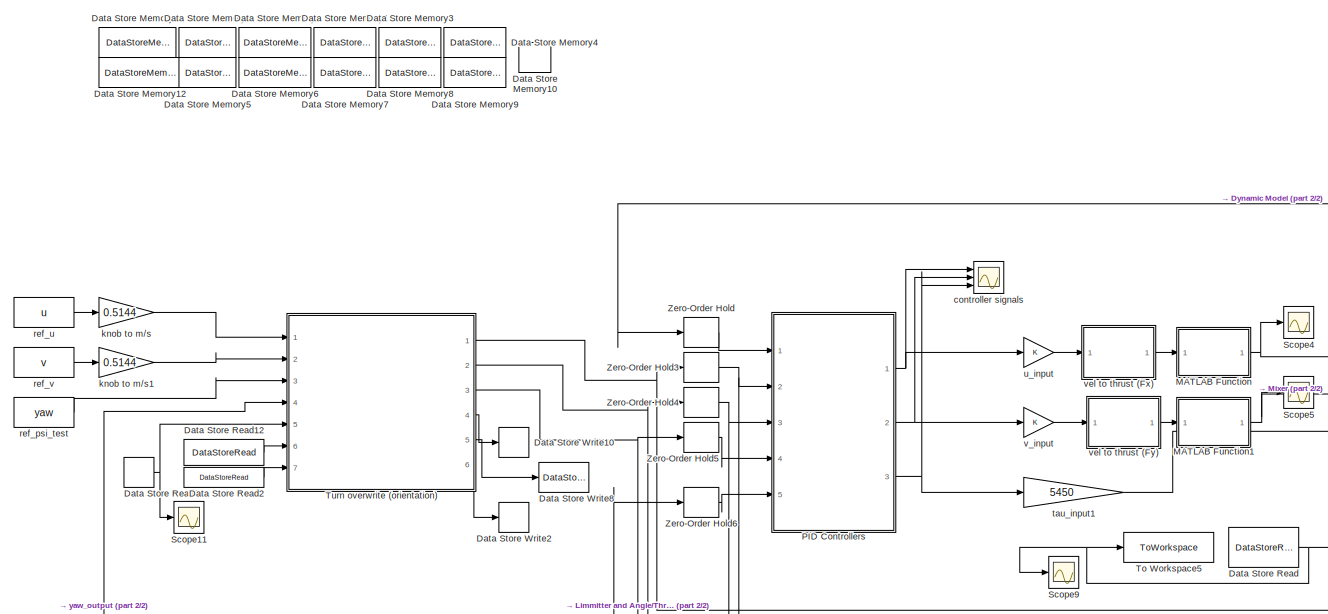
[diagram: root canvas - part 1/2, left side, full height]
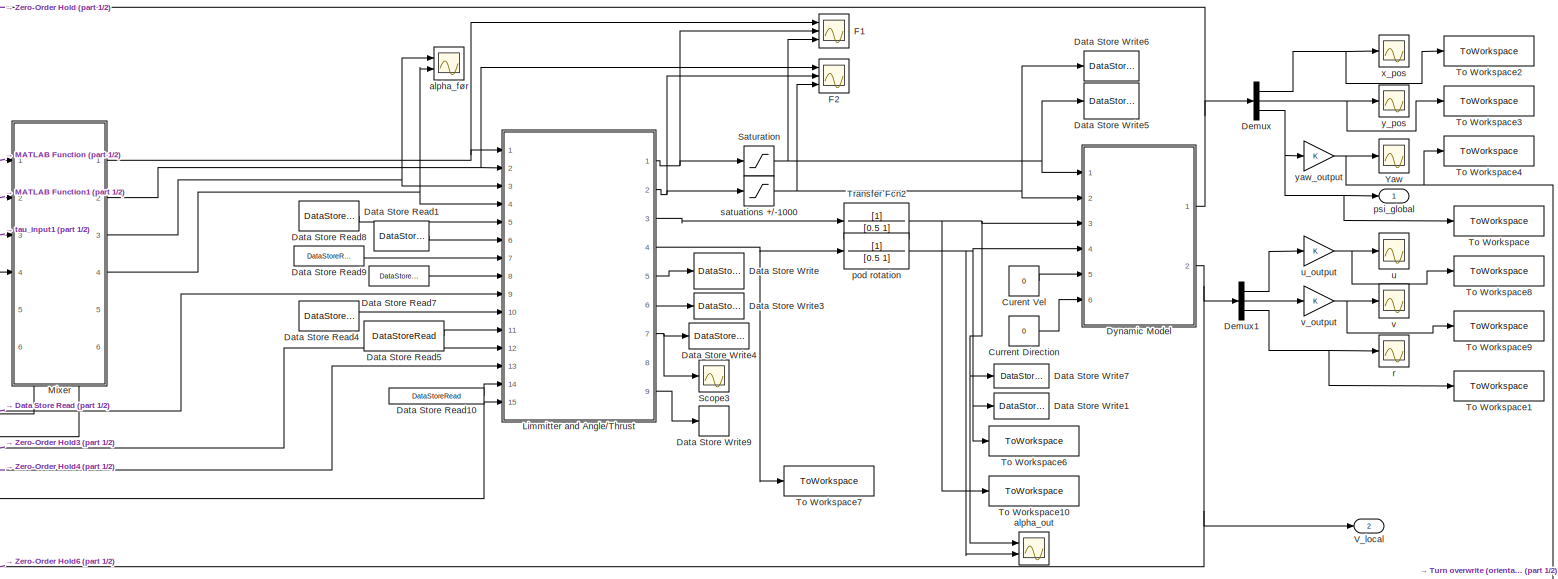
[diagram: root canvas - part 2/2, middle right region]
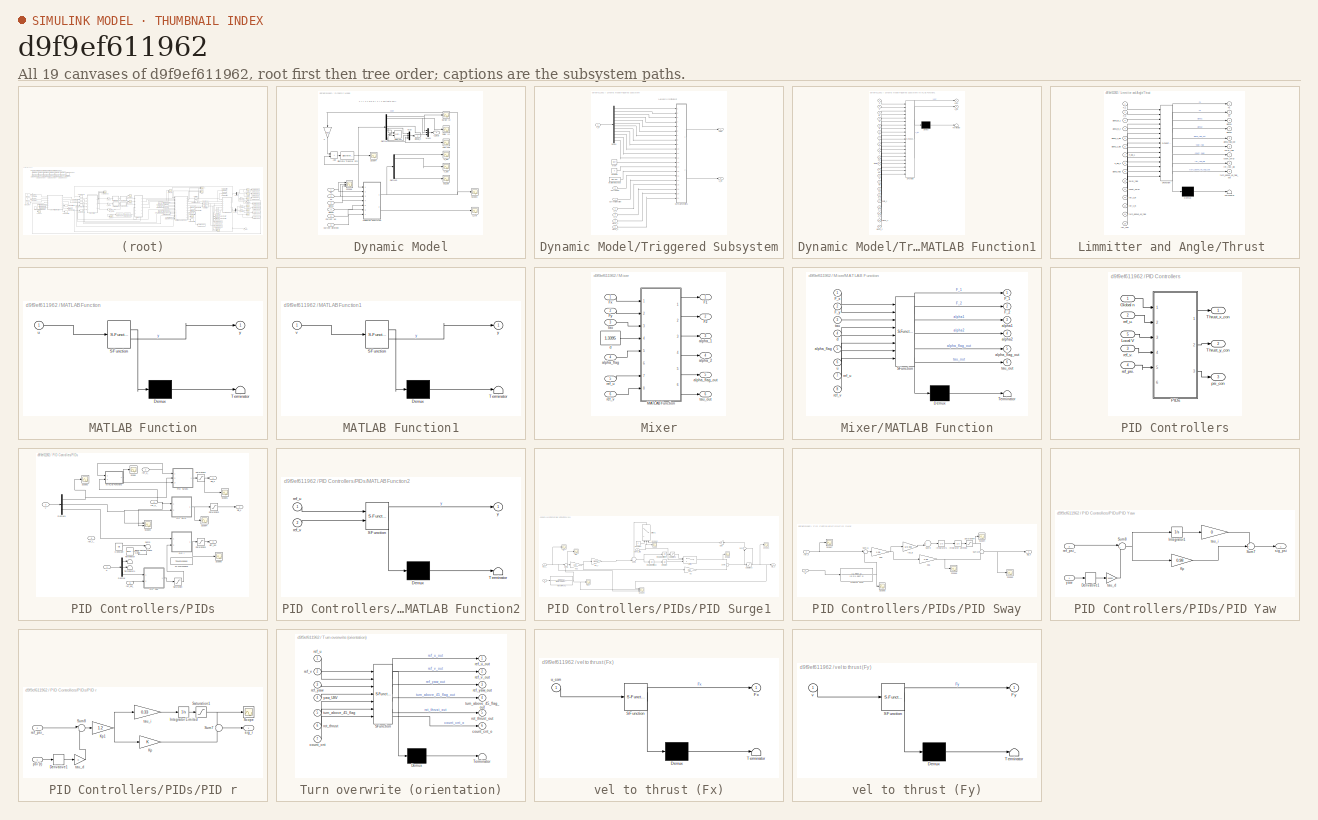
[diagram: thumbnail index - all 19 canvases of the model, root first then tree order]
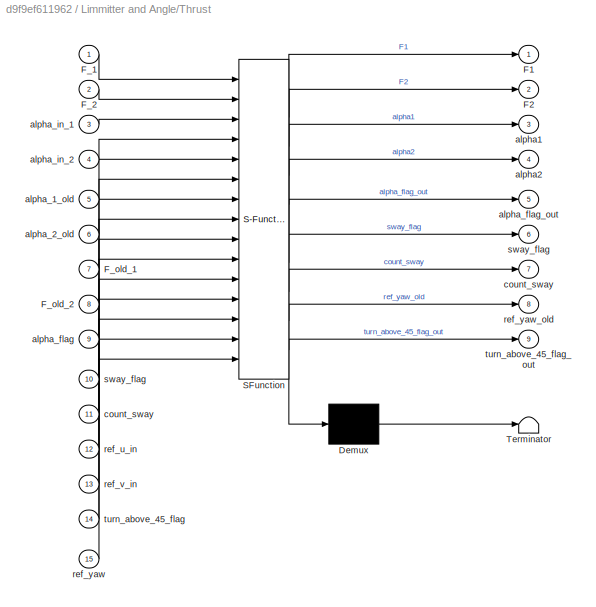
MODEL slx_d9f9ef611962
KIND model
CONFIG AbsTol = auto
CONFIG EnableMultiTasking = off
CONFIG FixedStep = auto
CONFIG MaxStep = auto
CONFIG MinStep = auto
CONFIG RelTol = 1e-3
CONFIG SampleTimeConstraint = Unconstrained
CONFIG SolverName = VariableStepAuto
CONFIG StartTime = 0.0
CONFIG StopTime = 200
BLOCK [Constant] Curent Vel
  Value = 0
BLOCK [Constant] Current Direction
  Value = 0
BLOCK [DataStoreMemory] Data Store Memory
  DataStoreName = alpha_flag
  ReadBeforeWriteMsg = warning
  ShowAdditionalParam = off
  WriteAfterReadMsg = warning
  WriteAfterWriteMsg = warning
BLOCK [DataStoreMemory] Data Store Memory1
  DataStoreName = alpha_2_old
  ReadBeforeWriteMsg = warning
  ShowAdditionalParam = off
  WriteAfterReadMsg = warning
  WriteAfterWriteMsg = warning
BLOCK [DataStoreMemory] Data Store Memory10
  DataStoreName = vs2
  ReadBeforeWriteMsg = warning
  ShowAdditionalParam = off
  WriteAfterReadMsg = warning
  WriteAfterWriteMsg = warning
BLOCK [DataStoreMemory] Data Store Memory11
  DataStoreName = rot_thrust_flag
  ReadBeforeWriteMsg = warning
  ShowAdditionalParam = off
  WriteAfterReadMsg = warning
  WriteAfterWriteMsg = warning
BLOCK [DataStoreMemory] Data Store Memory12
  DataStoreName = count_cnt
  ReadBeforeWriteMsg = warning
  ShowAdditionalParam = off
  WriteAfterReadMsg = warning
  WriteAfterWriteMsg = warning
BLOCK [DataStoreMemory] Data Store Memory2
  DataStoreName = u_con_old
  ReadBeforeWriteMsg = warning
  ShowAdditionalParam = off
  WriteAfterReadMsg = warning
  WriteAfterWriteMsg = warning
BLOCK [DataStoreMemory] Data Store Memory3
  DataStoreName = sway_flag
  ReadBeforeWriteMsg = warning
  ShowAdditionalParam = off
  WriteAfterReadMsg = warning
  WriteAfterWriteMsg = warning
BLOCK [DataStoreMemory] Data Store Memory4
  DataStoreName = count_sway
  ReadBeforeWriteMsg = warning
  ShowAdditionalParam = off
  WriteAfterReadMsg = warning
  WriteAfterWriteMsg = warning
BLOCK [DataStoreMemory] Data Store Memory5
  DataStoreName = F_old_1
  ReadBeforeWriteMsg = warning
  ShowAdditionalParam = off
  WriteAfterReadMsg = warning
  WriteAfterWriteMsg = warning
BLOCK [DataStoreMemory] Data Store Memory6
  DataStoreName = F_old_2
  ReadBeforeWriteMsg = warning
  ShowAdditionalParam = off
  WriteAfterReadMsg = warning
  WriteAfterWriteMsg = warning
BLOCK [DataStoreMemory] Data Store Memory7
  DataStoreName = alpha_1_old
  ReadBeforeWriteMsg = warning
  ShowAdditionalParam = off
  WriteAfterReadMsg = warning
  WriteAfterWriteMsg = warning
BLOCK [DataStoreMemory] Data Store Memory8
  DataStoreName = ref_yaw_old
  ReadBeforeWriteMsg = warning
  ShowAdditionalParam = off
  WriteAfterReadMsg = warning
  WriteAfterWriteMsg = warning
BLOCK [DataStoreMemory] Data Store Memory9
  DataStoreName = turn_above_45_flag
  ReadBeforeWriteMsg = warning
  ShowAdditionalParam = off
  WriteAfterReadMsg = warning
  WriteAfterWriteMsg = warning
BLOCK [DataStoreRead] Data Store Read
  DataStoreName = alpha_flag
  IndexOptions = Index vector (dialog)
  Indices = 1
  OutputSizes = 1
  Ports = [0, 1]
BLOCK [DataStoreRead] Data Store Read1
  DataStoreName = alpha_2_old
  IndexOptions = Index vector (dialog)
  Indices = 1
  OutputSizes = 1
  Ports = [0, 1]
BLOCK [DataStoreRead] Data Store Read10
  DataStoreName = turn_above_45_flag
  IndexOptions = Index vector (dialog)
  Indices = 1
  OutputSizes = 1
  Ports = [0, 1]
BLOCK [DataStoreRead] Data Store Read11
  DataStoreName = vs2
  IndexOptions = Index vector (dialog)
  Indices = 1
  OutputSizes = 1
  Ports = [0, 1]
BLOCK [DataStoreRead] Data Store Read12
  DataStoreName = rot_thrust_flag
  IndexOptions = Index vector (dialog)
  Indices = 1
  OutputSizes = 1
  Ports = [0, 1]
BLOCK [DataStoreRead] Data Store Read2
  DataStoreName = count_cnt
  IndexOptions = Index vector (dialog)
  Indices = 1
  OutputSizes = 1
  Ports = [0, 1]
BLOCK [DataStoreRead] Data Store Read4
  DataStoreName = sway_flag
  IndexOptions = Index vector (dialog)
  Indices = 1
  OutputSizes = 1
  Ports = [0, 1]
BLOCK [DataStoreRead] Data Store Read5
  DataStoreName = count_sway
  IndexOptions = Index vector (dialog)
  Indices = 1
  OutputSizes = 1
  Ports = [0, 1]
BLOCK [DataStoreRead] Data Store Read7
  DataStoreName = F_old_2
  IndexOptions = Index vector (dialog)
  Indices = 1
  OutputSizes = 1
  Ports = [0, 1]
BLOCK [DataStoreRead] Data Store Read8
  DataStoreName = alpha_1_old
  IndexOptions = Index vector (dialog)
  Indices = 1
  OutputSizes = 1
  Ports = [0, 1]
BLOCK [DataStoreRead] Data Store Read9
  DataStoreName = F_old_1
  IndexOptions = Index vector (dialog)
  Indices = 1
  OutputSizes = 1
  Ports = [0, 1]
BLOCK [DataStoreWrite] Data Store Write
  DataStoreName = alpha_flag
  IndexOptions = Index vector (dialog)
  Indices = 1
  OutputSizes = 1
  Ports = [1]
BLOCK [DataStoreWrite] Data Store Write1
  DataStoreName = alpha_2_old
  IndexOptions = Index vector (dialog)
  Indices = 1
  OutputSizes = 1
  Ports = [1]
BLOCK [DataStoreWrite] Data Store Write10
  DataStoreName = vs2
  IndexOptions = Index vector (dialog)
  Indices = 1
  OutputSizes = 1
  Ports = [1]
BLOCK [DataStoreWrite] Data Store Write2
  DataStoreName = count_cnt
  IndexOptions = Index vector (dialog)
  Indices = 1
  OutputSizes = 1
  Ports = [1]
BLOCK [DataStoreWrite] Data Store Write3
  DataStoreName = sway_flag
  IndexOptions = Index vector (dialog)
  Indices = 1
  OutputSizes = 1
  Ports = [1]
BLOCK [DataStoreWrite] Data Store Write4
  DataStoreName = count_sway
  IndexOptions = Index vector (dialog)
  Indices = 1
  OutputSizes = 1
  Ports = [1]
BLOCK [DataStoreWrite] Data Store Write5
  DataStoreName = F_old_1
  IndexOptions = Index vector (dialog)
  Indices = 1
  OutputSizes = 1
  Ports = [1]
BLOCK [DataStoreWrite] Data Store Write6
  DataStoreName = F_old_2
  IndexOptions = Index vector (dialog)
  Indices = 1
  OutputSizes = 1
  Ports = [1]
BLOCK [DataStoreWrite] Data Store Write7
  DataStoreName = alpha_1_old
  IndexOptions = Index vector (dialog)
  Indices = 1
  OutputSizes = 1
  Ports = [1]
BLOCK [DataStoreWrite] Data Store Write8
  DataStoreName = rot_thrust_flag
  IndexOptions = Index vector (dialog)
  Indices = 1
  OutputSizes = 1
  Ports = [1]
BLOCK [DataStoreWrite] Data Store Write9
  DataStoreName = turn_above_45_flag
  IndexOptions = Index vector (dialog)
  Indices = 1
  OutputSizes = 1
  Ports = [1]
BLOCK [Demux] Demux
  Outputs = 3
  Ports = [1, 3]
BLOCK [Demux] Demux1
  Outputs = 3
  Ports = [1, 3]
BLOCK [SubSystem] Dynamic Model
  Ports = [6, 2]
  RequestExecContextInheritance = off
BLOCK [Sum] Dynamic Model/Add
  IconShape = rectangular
  Ports = [2, 1]
BLOCK [Inport] Dynamic Model/Current Vel
  Port = 5
BLOCK [Inport] Dynamic Model/Current direction
  Port = 6
BLOCK [Demux] Dynamic Model/Demux
  Outputs = 12
  Ports = [1, 12]
BLOCK [Demux] Dynamic Model/Demux5
  Outputs = 12
  Ports = [1, 12]
BLOCK [DiscreteTransferFcn] Dynamic Model/Discrete Transfer Fcn
  Denominator = [ 1 0]
  InputPortMap = u0
  Ports = [1, 1]
  SampleTime = 0.02
BLOCK [Inport] Dynamic Model/F1
BLOCK [Inport] Dynamic Model/F2
  Port = 2
BLOCK [Mux] Dynamic Model/Mux
  DisplayOption = bar
  Inputs = 3
  Ports = [3, 1]
BLOCK [Mux] Dynamic Model/Mux1
  DisplayOption = bar
  Inputs = 3
  Ports = [3, 1]
BLOCK [Reference] Dynamic Model/NED-XY2  REF=simulink/Sinks/XY Graph
  Ports = [2]
  SourceBlock = simulink/Sinks/XY Graph
  SourceProductBaseCode = SL
  SourceType = XY scope.
BLOCK [Scope] Dynamic Model/Scope3
  Floating = off
  NumInputPorts = 1
  Ports = [1]
  ScopeSpecificationString = Simulink.scopes.TimeScopeBlockCfg('CurrentConfiguration', extmgr.ConfigurationSet(extmgr.Configuration('Core','General UI',true),extmgr.Configuration('Core','Source UI',true),extmgr.Configuration('Sources','WiredSimulink',true,'DataLoggingVariableName','ScopeData9'),extmgr.Configuration('Visuals','Time Domain',true,'SerializedDisplays',{struct('MinYLimReal','-3.2642','MaxYLimReal','24.99719','YLab...<+1909ch>
BLOCK [Scope] Dynamic Model/Scope4
  Floating = off
  NumInputPorts = 1
  Ports = [1]
  ScopeSpecificationString = Simulink.scopes.TimeScopeBlockCfg('CurrentConfiguration', extmgr.ConfigurationSet(extmgr.Configuration('Core','General UI',true),extmgr.Configuration('Core','Source UI',true),extmgr.Configuration('Sources','WiredSimulink',true,'DataLoggingVariableName','ScopeData10'),extmgr.Configuration('Visuals','Time Domain',true,'SerializedDisplays',{struct('MinYLimReal','-99.44785','MaxYLimReal','894.99082','...<+2087ch>
BLOCK [Scope] Dynamic Model/Scope6
  Floating = off
  NumInputPorts = 3
  Ports = [3]
  ScopeSpecificationString = Simulink.scopes.TimeScopeBlockCfg('CurrentConfiguration', extmgr.ConfigurationSet(extmgr.Configuration('Core','General UI',true),extmgr.Configuration('Core','Source UI',true),extmgr.Configuration('Sources','WiredSimulink',true,'DataLoggingVariableName','ScopeData12'),extmgr.Configuration('Visuals','Time Domain',true,'SerializedDisplays',{struct('MinYLimReal','-67.98053','MaxYLimReal','611.8248','Y...<+1773ch>
BLOCK [Scope] Dynamic Model/Surge (u)
  Floating = off
  NumInputPorts = 1
  Ports = [1]
  ScopeSpecificationString = Simulink.scopes.TimeScopeBlockCfg('CurrentConfiguration', extmgr.ConfigurationSet(extmgr.Configuration('Core','General UI',true),extmgr.Configuration('Core','Source UI',true),extmgr.Configuration('Sources','WiredSimulink',true,'DataLoggingVariableName','ScopeData8'),extmgr.Configuration('Visuals','Time Domain',true,'SerializedDisplays',{struct('MinYLimReal','-0.25367','MaxYLimReal','2.28305','YLab...<+1721ch>
BLOCK [Scope] Dynamic Model/Sway (v)
  Floating = off
  NumInputPorts = 1
  Ports = [1]
  ScopeSpecificationString = Simulink.scopes.TimeScopeBlockCfg('CurrentConfiguration', extmgr.ConfigurationSet(extmgr.Configuration('Core','General UI',true),extmgr.Configuration('Core','Source UI',true),extmgr.Configuration('Sources','WiredSimulink',true,'DataLoggingVariableName','ScopeData13'),extmgr.Configuration('Visuals','Time Domain',true,'SerializedDisplays',{struct('MinYLimReal','-0.08805','MaxYLimReal','0.79243','YLa...<+1696ch>
BLOCK [SubSystem] Dynamic Model/Triggered Subsystem
  Ports = [7, 2]
  RequestExecContextInheritance = off
  TreatAsAtomicUnit = on
BLOCK [Inport] Dynamic Model/Triggered Subsystem/Current Direction
  Port = 7
BLOCK [Inport] Dynamic Model/Triggered Subsystem/Current Vel
  Port = 6
BLOCK [Demux] Dynamic Model/Triggered Subsystem/Demux
  Outputs = 12
  Ports = [1, 12]
BLOCK [Inport] Dynamic Model/Triggered Subsystem/F_1
  Port = 2
BLOCK [Inport] Dynamic Model/Triggered Subsystem/F_2
  Port = 3
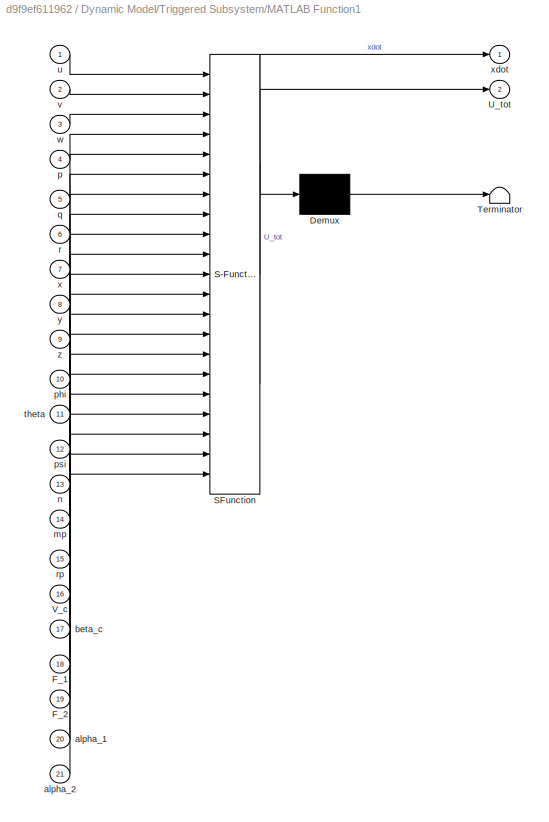
BLOCK [SubSystem] Dynamic Model/Triggered Subsystem/MATLAB Function1
  ErrorFcn = Stateflow.Translate.translate
  PermitHierarchicalResolution = ExplicitOnly
  Ports = [21, 2]
  RequestExecContextInheritance = off
  SFBlockType = MATLAB Function
  TreatAsAtomicUnit = on
BLOCK [Demux] Dynamic Model/Triggered Subsystem/MATLAB Function1/ Demux 
  Outputs = 1
  Ports = [1, 1]
BLOCK [S-Function] Dynamic Model/Triggered Subsystem/MATLAB Function1/ SFunction 
  EnableBusSupport = on
  FunctionName = sf_sfun
  PortCounts = [21 3]
  Ports = [21, 3]
  SFcnIsStateOwnerBlock = off
  SFunctionDeploymentMode = off
  Tag = Stateflow S-Function 13
BLOCK [Terminator] Dynamic Model/Triggered Subsystem/MATLAB Function1/ Terminator 
BLOCK [Inport] Dynamic Model/Triggered Subsystem/MATLAB Function1/F_1
  Port = 18
BLOCK [Inport] Dynamic Model/Triggered Subsystem/MATLAB Function1/F_2
  Port = 19
BLOCK [Outport] Dynamic Model/Triggered Subsystem/MATLAB Function1/U_tot
  Port = 2
BLOCK [Inport] Dynamic Model/Triggered Subsystem/MATLAB Function1/V_c
  Port = 16
BLOCK [Inport] Dynamic Model/Triggered Subsystem/MATLAB Function1/alpha_1
  Port = 20
BLOCK [Inport] Dynamic Model/Triggered Subsystem/MATLAB Function1/alpha_2
  Port = 21
BLOCK [Inport] Dynamic Model/Triggered Subsystem/MATLAB Function1/beta_c
  Port = 17
BLOCK [Inport] Dynamic Model/Triggered Subsystem/MATLAB Function1/mp
  Port = 14
BLOCK [Inport] Dynamic Model/Triggered Subsystem/MATLAB Function1/n
  Port = 13
BLOCK [Inport] Dynamic Model/Triggered Subsystem/MATLAB Function1/p
  Port = 4
BLOCK [Inport] Dynamic Model/Triggered Subsystem/MATLAB Function1/phi
  Port = 10
BLOCK [Inport] Dynamic Model/Triggered Subsystem/MATLAB Function1/psi
  Port = 12
BLOCK [Inport] Dynamic Model/Triggered Subsystem/MATLAB Function1/q
  Port = 5
BLOCK [Inport] Dynamic Model/Triggered Subsystem/MATLAB Function1/r
  Port = 6
BLOCK [Inport] Dynamic Model/Triggered Subsystem/MATLAB Function1/rp
  Port = 15
BLOCK [Inport] Dynamic Model/Triggered Subsystem/MATLAB Function1/theta
  Port = 11
BLOCK [Inport] Dynamic Model/Triggered Subsystem/MATLAB Function1/u
BLOCK [Inport] Dynamic Model/Triggered Subsystem/MATLAB Function1/v
  Port = 2
BLOCK [Inport] Dynamic Model/Triggered Subsystem/MATLAB Function1/w
  Port = 3
BLOCK [Inport] Dynamic Model/Triggered Subsystem/MATLAB Function1/x
  Port = 7
BLOCK [Outport] Dynamic Model/Triggered Subsystem/MATLAB Function1/xdot
BLOCK [Inport] Dynamic Model/Triggered Subsystem/MATLAB Function1/y
  Port = 8
BLOCK [Inport] Dynamic Model/Triggered Subsystem/MATLAB Function1/z
  Port = 9
BLOCK [Outport] Dynamic Model/Triggered Subsystem/U_tot
  Port = 2
BLOCK [Inport] Dynamic Model/Triggered Subsystem/alpha_1
  Port = 4
BLOCK [Inport] Dynamic Model/Triggered Subsystem/alpha_2
  Port = 5
BLOCK [Constant] Dynamic Model/Triggered Subsystem/location of payload
  Value = [0 0 -0.1]'
BLOCK [Constant] Dynamic Model/Triggered Subsystem/n rpm
  Value = [0 0]'
BLOCK [Constant] Dynamic Model/Triggered Subsystem/payload
  Value = 0
BLOCK [Inport] Dynamic Model/Triggered Subsystem/x_in
BLOCK [Outport] Dynamic Model/Triggered Subsystem/xdot
BLOCK [Scope] Dynamic Model/U_tot
  Floating = off
  NumInputPorts = 1
  Ports = [1]
  ScopeSpecificationString = Simulink.scopes.TimeScopeBlockCfg('CurrentConfiguration', extmgr.ConfigurationSet(extmgr.Configuration('Core','General UI',true),extmgr.Configuration('Core','Source UI',true),extmgr.Configuration('Sources','WiredSimulink',true,'DataLoggingVariableName','ScopeData11'),extmgr.Configuration('Visuals','Time Domain',true,'SerializedDisplays',{struct('MinYLimReal','-0.55994','MaxYLimReal','5.03948','YLa...<+1410ch>
BLOCK [Outport] Dynamic Model/V_local
  Port = 2
BLOCK [Scope] Dynamic Model/Yaw (psi)
  Floating = off
  NumInputPorts = 1
  Ports = [1]
  ScopeSpecificationString = Simulink.scopes.TimeScopeBlockCfg('CurrentConfiguration', extmgr.ConfigurationSet(extmgr.Configuration('Core','General UI',true),extmgr.Configuration('Core','Source UI',true),extmgr.Configuration('Sources','WiredSimulink',true,'DataLoggingVariableName','ScopeData14'),extmgr.Configuration('Visuals','Time Domain',true,'SerializedDisplays',{struct('MinYLimReal','-1.00000','MaxYLimReal','1.00000','YLa...<+1422ch>
BLOCK [Inport] Dynamic Model/alpha1
  Port = 3
BLOCK [Inport] Dynamic Model/alpha2
  Port = 4
BLOCK [Outport] Dynamic Model/global_n
BLOCK [Gain] Dynamic Model/h
  Gain = 0.02
  NameLocation = left
BLOCK [Scope] Dynamic Model/psi_dot
  Floating = off
  NumInputPorts = 1
  Ports = [1]
  ScopeSpecificationString = Simulink.scopes.TimeScopeBlockCfg('CurrentConfiguration', extmgr.ConfigurationSet(extmgr.Configuration('Core','General UI',true),extmgr.Configuration('Core','Source UI',true),extmgr.Configuration('Sources','WiredSimulink',true,'DataLoggingVariableName','ScopeData7'),extmgr.Configuration('Visuals','Time Domain',true,'SerializedDisplays',{struct('MinYLimReal','-0.00000006','MaxYLimReal','0.00000019'...<+1438ch>
BLOCK [Scope] Dynamic Model/u_dot
  Floating = off
  NumInputPorts = 1
  Ports = [1]
  ScopeSpecificationString = Simulink.scopes.TimeScopeBlockCfg('CurrentConfiguration', extmgr.ConfigurationSet(extmgr.Configuration('Core','General UI',true),extmgr.Configuration('Core','Source UI',true),extmgr.Configuration('Sources','WiredSimulink',true,'DataLoggingVariableName','ScopeData5'),extmgr.Configuration('Visuals','Time Domain',true,'SerializedDisplays',{struct('MinYLimReal','-0.14262','MaxYLimReal','1.38682','YLab...<+1442ch>
BLOCK [Scope] Dynamic Model/v_dot
  Floating = off
  NumInputPorts = 1
  Ports = [1]
  ScopeSpecificationString = Simulink.scopes.TimeScopeBlockCfg('CurrentConfiguration', extmgr.ConfigurationSet(extmgr.Configuration('Core','General UI',true),extmgr.Configuration('Core','Source UI',true),extmgr.Configuration('Sources','WiredSimulink',true,'DataLoggingVariableName','ScopeData6'),extmgr.Configuration('Visuals','Time Domain',true,'SerializedDisplays',{struct('MinYLimReal','0.23964','MaxYLimReal','0.2606','YLabel...<+1436ch>
BLOCK [Scope] F1
  Floating = off
  NumInputPorts = 3
  Ports = [3]
  ScopeSpecificationString = Simulink.scopes.TimeScopeBlockCfg('CurrentConfiguration', extmgr.ConfigurationSet(extmgr.Configuration('Core','General UI',true),extmgr.Configuration('Core','Source UI',true),extmgr.Configuration('Sources','WiredSimulink',true,'DataLoggingVariableName','ScopeData3'),extmgr.Configuration('Visuals','Time Domain',true,'SerializedDisplays',{struct('MinYLimReal','-211.62703','MaxYLimReal','184.92836','...<+1508ch>
BLOCK [Scope] F2
  Floating = off
  NumInputPorts = 3
  Ports = [3]
  ScopeSpecificationString = Simulink.scopes.TimeScopeBlockCfg('CurrentConfiguration', extmgr.ConfigurationSet(extmgr.Configuration('Core','General UI',true),extmgr.Configuration('Core','Source UI',true),extmgr.Configuration('Sources','WiredSimulink',true,'DataLoggingVariableName','ScopeData4'),extmgr.Configuration('Visuals','Time Domain',true,'SerializedDisplays',{struct('MinYLimReal','-614.27607','MaxYLimReal','1278.61173',...<+1519ch>
BLOCK [SubSystem] Limmitter and Angle//Thrust 
  ErrorFcn = Stateflow.Translate.translate
  PermitHierarchicalResolution = ExplicitOnly
  Ports = [15, 9]
  RequestExecContextInheritance = off
  SFBlockType = MATLAB Function
  TreatAsAtomicUnit = on
BLOCK [Demux] Limmitter and Angle//Thrust / Demux 
  Outputs = 1
  Ports = [1, 1]
BLOCK [S-Function] Limmitter and Angle//Thrust / SFunction 
  EnableBusSupport = on
  FunctionName = sf_sfun
  PortCounts = [15 10]
  Ports = [15, 10]
  SFcnIsStateOwnerBlock = off
  SFunctionDeploymentMode = off
  Tag = Stateflow S-Function 1
BLOCK [Terminator] Limmitter and Angle//Thrust / Terminator 
BLOCK [Outport] Limmitter and Angle//Thrust /F1
BLOCK [Outport] Limmitter and Angle//Thrust /F2
  Port = 2
BLOCK [Inport] Limmitter and Angle//Thrust /F_1
BLOCK [Inport] Limmitter and Angle//Thrust /F_2
  Port = 2
BLOCK [Inport] Limmitter and Angle//Thrust /F_old_1
  Port = 7
BLOCK [Inport] Limmitter and Angle//Thrust /F_old_2
  Port = 8
BLOCK [Outport] Limmitter and Angle//Thrust /alpha1
  Port = 3
BLOCK [Outport] Limmitter and Angle//Thrust /alpha2
  Port = 4
BLOCK [Inport] Limmitter and Angle//Thrust /alpha_1_old
  Port = 5
BLOCK [Inport] Limmitter and Angle//Thrust /alpha_2_old
  Port = 6
BLOCK [Inport] Limmitter and Angle//Thrust /alpha_flag
  Port = 9
BLOCK [Outport] Limmitter and Angle//Thrust /alpha_flag_out
  Port = 5
BLOCK [Inport] Limmitter and Angle//Thrust /alpha_in_1
  Port = 3
BLOCK [Inport] Limmitter and Angle//Thrust /alpha_in_2
  Port = 4
BLOCK [Outport] Limmitter and Angle//Thrust /count_sway
  Port = 7
BLOCK [Inport] Limmitter and Angle//Thrust /count_sway 
  Port = 11
BLOCK [Inport] Limmitter and Angle//Thrust /ref_u_in
  Port = 12
BLOCK [Inport] Limmitter and Angle//Thrust /ref_v_in
  Port = 13
BLOCK [Inport] Limmitter and Angle//Thrust /ref_yaw
  Port = 15
BLOCK [Outport] Limmitter and Angle//Thrust /ref_yaw_old
  Port = 8
BLOCK [Outport] Limmitter and Angle//Thrust /sway_flag
  Port = 6
BLOCK [Inport] Limmitter and Angle//Thrust /sway_flag 
  Port = 10
BLOCK [Inport] Limmitter and Angle//Thrust /turn_above_45_flag
  Port = 14
BLOCK [Outport] Limmitter and Angle//Thrust /turn_above_45_flag_out
  Port = 9
BLOCK [SubSystem] MATLAB Function
  ErrorFcn = Stateflow.Translate.translate
  PermitHierarchicalResolution = ExplicitOnly
  Ports = [1, 1]
  RequestExecContextInheritance = off
  SFBlockType = MATLAB Function
  TreatAsAtomicUnit = on
BLOCK [Demux] MATLAB Function/ Demux 
  Outputs = 1
  Ports = [1, 1]
BLOCK [S-Function] MATLAB Function/ SFunction 
  EnableBusSupport = on
  FunctionName = sf_sfun
  PortCounts = [1 2]
  Ports = [1, 2]
  SFcnIsStateOwnerBlock = off
  SFunctionDeploymentMode = off
  Tag = Stateflow S-Function 6
BLOCK [Terminator] MATLAB Function/ Terminator 
BLOCK [Inport] MATLAB Function/u
BLOCK [Outport] MATLAB Function/y
BLOCK [SubSystem] MATLAB Function1
  ErrorFcn = Stateflow.Translate.translate
  PermitHierarchicalResolution = ExplicitOnly
  Ports = [1, 1]
  RequestExecContextInheritance = off
  SFBlockType = MATLAB Function
  TreatAsAtomicUnit = on
BLOCK [Demux] MATLAB Function1/ Demux 
  Outputs = 1
  Ports = [1, 1]
BLOCK [S-Function] MATLAB Function1/ SFunction 
  EnableBusSupport = on
  FunctionName = sf_sfun
  PortCounts = [1 2]
  Ports = [1, 2]
  SFcnIsStateOwnerBlock = off
  SFunctionDeploymentMode = off
  Tag = Stateflow S-Function 14
BLOCK [Terminator] MATLAB Function1/ Terminator 
BLOCK [Inport] MATLAB Function1/v
BLOCK [Outport] MATLAB Function1/y
BLOCK [SubSystem] Mixer
  PortSchema = {"entries":[{"content":{"sides":[{"content":{"connectorIds":["In1","In2","In3","In4"]},"type":"ConnectorPlacement.EquallySpacedRectSide","uuid":"7188d02b-cfcc-47db-af94-18894173419c"},{"content":{"connectorIds":["Out1","Out2","Out3","Out4","Out5","Out6"],"side":"RIGHT"},"type":"ConnectorPlacement.EquallySpacedRectSide","uuid":"02945fdb-bbe4-4a20-85bf-b896b72802e6"},{"content":{"connectorIds":[],"s...<+448ch>
  Ports = [6, 6]
  RequestExecContextInheritance = off
BLOCK [Outport] Mixer/F1
BLOCK [Outport] Mixer/F2
  Port = 2
BLOCK [Inport] Mixer/Fx
BLOCK [Inport] Mixer/Fy
  Port = 2
BLOCK [SubSystem] Mixer/MATLAB Function
  ErrorFcn = Stateflow.Translate.translate
  PermitHierarchicalResolution = ExplicitOnly
  Ports = [8, 6]
  RequestExecContextInheritance = off
  SFBlockType = MATLAB Function
  TreatAsAtomicUnit = on
BLOCK [Demux] Mixer/MATLAB Function/ Demux 
  Outputs = 1
  Ports = [1, 1]
BLOCK [S-Function] Mixer/MATLAB Function/ SFunction 
  EnableBusSupport = on
  FunctionName = sf_sfun
  PortCounts = [8 7]
  Ports = [8, 7]
  SFcnIsStateOwnerBlock = off
  SFunctionDeploymentMode = off
  Tag = Stateflow S-Function 19
BLOCK [Terminator] Mixer/MATLAB Function/ Terminator 
BLOCK [Outport] Mixer/MATLAB Function/F_1
BLOCK [Outport] Mixer/MATLAB Function/F_2
  Port = 2
BLOCK [Inport] Mixer/MATLAB Function/F_x
BLOCK [Inport] Mixer/MATLAB Function/F_y
  Port = 2
BLOCK [Outport] Mixer/MATLAB Function/alpha1
  Port = 3
BLOCK [Outport] Mixer/MATLAB Function/alpha2
  Port = 4
BLOCK [Inport] Mixer/MATLAB Function/alpha_flag
  Port = 5
BLOCK [Outport] Mixer/MATLAB Function/alpha_flag_out
  Port = 5
BLOCK [Inport] Mixer/MATLAB Function/d
  Port = 4
BLOCK [Inport] Mixer/MATLAB Function/ref_u
  Port = 7
BLOCK [Inport] Mixer/MATLAB Function/ref_v
  Port = 8
BLOCK [Inport] Mixer/MATLAB Function/tau
  Port = 3
BLOCK [Outport] Mixer/MATLAB Function/tau_out
  Port = 6
BLOCK [Inport] Mixer/MATLAB Function/u
  Port = 6
BLOCK [Outport] Mixer/alpha_1
  Port = 3
BLOCK [Outport] Mixer/alpha_2
  Port = 4
BLOCK [Inport] Mixer/alpha_flag
  Port = 4
BLOCK [Outport] Mixer/alpha_flag_out
  Port = 5
BLOCK [Constant] Mixer/d
  Value = 1.3395
BLOCK [Inport] Mixer/ref_u
  Port = 5
BLOCK [Inport] Mixer/ref_v
  Port = 6
BLOCK [Inport] Mixer/tau
  Port = 3
BLOCK [Outport] Mixer/tau_out
  Port = 6
BLOCK [SubSystem] PID Controllers
  Ports = [5, 3]
  RequestExecContextInheritance = off
BLOCK [Inport] PID Controllers/Global n
BLOCK [Inport] PID Controllers/Local V
  Port = 5
BLOCK [SubSystem] PID Controllers/PIDs
  Ports = [6, 3]
  RequestExecContextInheritance = off
BLOCK [Reference] PID Controllers/PIDs/Band-Limited White Noise  REF=simulink/Sources/Band-Limited
White Noise
  Ports = [0, 1]
  SourceBlock = simulink/Sources/Band-Limited\nWhite Noise
  SourceProductBaseCode = SL
  SourceType = Band-Limited White Noise.
BLOCK [Constant] PID Controllers/PIDs/Constant
  Value = pi/2
BLOCK [Demux] PID Controllers/PIDs/Demux
  Outputs = 3
  Ports = [1, 3]
BLOCK [Demux] PID Controllers/PIDs/Demux1
  Outputs = 3
  Ports = [1, 3]
BLOCK [SubSystem] PID Controllers/PIDs/MATLAB Function2
  ErrorFcn = Stateflow.Translate.translate
  PermitHierarchicalResolution = ExplicitOnly
  Ports = [2, 1]
  RequestExecContextInheritance = off
  SFBlockType = MATLAB Function
  TreatAsAtomicUnit = on
BLOCK [Demux] PID Controllers/PIDs/MATLAB Function2/ Demux 
  Outputs = 1
  Ports = [1, 1]
BLOCK [S-Function] PID Controllers/PIDs/MATLAB Function2/ SFunction 
  EnableBusSupport = on
  FunctionName = sf_sfun
  PortCounts = [2 2]
  Ports = [2, 2]
  SFcnIsStateOwnerBlock = off
  SFunctionDeploymentMode = off
  Tag = Stateflow S-Function 4
BLOCK [Terminator] PID Controllers/PIDs/MATLAB Function2/ Terminator 
BLOCK [Inport] PID Controllers/PIDs/MATLAB Function2/ref_u
BLOCK [Inport] PID Controllers/PIDs/MATLAB Function2/ref_v
  Port = 2
BLOCK [Outport] PID Controllers/PIDs/MATLAB Function2/y
BLOCK [SubSystem] PID Controllers/PIDs/PID Surge1
  Ports = [3, 1]
  RequestExecContextInheritance = off
BLOCK [Constant] PID Controllers/PIDs/PID Surge1/Constant
  Value = 0
BLOCK [Gain] PID Controllers/PIDs/PID Surge1/Gain
  Gain = 0.9
  NameLocation = top
BLOCK [Integrator] PID Controllers/PIDs/PID Surge1/Integrator
  Ports = [1, 1]
BLOCK [Integrator] PID Controllers/PIDs/PID Surge1/Integrator Limited2
  Commented = through
  LimitOutput = on
  LowerSaturationLimit = -0.5144
  Ports = [1, 1]
  UpperSaturationLimit = 0.5144
BLOCK [Integrator] PID Controllers/PIDs/PID Surge1/Integrator Limited3
  LimitOutput = on
  LowerSaturationLimit = -0.2
  Ports = [1, 1]
  UpperSaturationLimit = 0.2
BLOCK [Gain] PID Controllers/PIDs/PID Surge1/Kp
  Commented = through
  Gain = 2.56
BLOCK [Gain] PID Controllers/PIDs/PID Surge1/Kp2
  Gain = 1.43
BLOCK [Saturate] PID Controllers/PIDs/PID Surge1/Saturation3
  LowerLimit = -8*0.54133
  UpperLimit = 8*0.54133
BLOCK [Saturate] PID Controllers/PIDs/PID Surge1/Saturation5
  LowerLimit = 0
  UpperLimit = 0
BLOCK [Scope] PID Controllers/PIDs/PID Surge1/Scope
  Floating = off
  NumInputPorts = 1
  Ports = [1]
  ScopeSpecificationString = Simulink.scopes.TimeScopeBlockCfg('CurrentConfiguration', extmgr.ConfigurationSet(extmgr.Configuration('Core','General UI',true),extmgr.Configuration('Core','Source UI',true),extmgr.Configuration('Sources','WiredSimulink',true,'DataLoggingVariableName','ScopeData1'),extmgr.Configuration('Visuals','Time Domain',true,'SerializedDisplays',{struct('MinYLimReal','-1.00000','MaxYLimReal','1.00000','YLab...<+1396ch>
BLOCK [Scope] PID Controllers/PIDs/PID Surge1/Scope2
  Floating = off
  NumInputPorts = 1
  Ports = [1]
  ScopeSpecificationString = Simulink.scopes.TimeScopeBlockCfg('CurrentConfiguration', extmgr.ConfigurationSet(extmgr.Configuration('Core','General UI',true),extmgr.Configuration('Core','Source UI',true),extmgr.Configuration('Sources','WiredSimulink',true,'DataLoggingVariableName','ScopeData6'),extmgr.Configuration('Visuals','Time Domain',true,'SerializedDisplays',{struct('MinYLimReal','0.9','MaxYLimReal','1.1','YLabelReal','...<+1366ch>
BLOCK [Scope] PID Controllers/PIDs/PID Surge1/Scope3
  Floating = off
  NumInputPorts = 1
  Ports = [1]
  ScopeSpecificationString = Simulink.scopes.TimeScopeBlockCfg('CurrentConfiguration', extmgr.ConfigurationSet(extmgr.Configuration('Core','General UI',true),extmgr.Configuration('Core','Source UI',true),extmgr.Configuration('Sources','WiredSimulink',true,'DataLoggingVariableName','ScopeData2'),extmgr.Configuration('Visuals','Time Domain',true,'SerializedDisplays',{struct('MinYLimReal','-5.4133','MaxYLimReal','5.4133','YLabel...<+1415ch>
BLOCK [Scope] PID Controllers/PIDs/PID Surge1/Scope4
  Floating = off
  NumInputPorts = 3
  Ports = [3]
  ScopeSpecificationString = Simulink.scopes.TimeScopeBlockCfg('CurrentConfiguration', extmgr.ConfigurationSet(extmgr.Configuration('Core','General UI',true),extmgr.Configuration('Core','Source UI',true),extmgr.Configuration('Sources','WiredSimulink',true,'DataLoggingVariableName','ScopeData6'),extmgr.Configuration('Visuals','Time Domain',true,'SerializedDisplays',{struct('MinYLimReal','-5.40739','MaxYLimReal','5.36013','YLab...<+1805ch>
BLOCK [Sum] PID Controllers/PIDs/PID Surge1/Sum
  Inputs = |-+
  NameLocation = right
  Ports = [2, 1]
BLOCK [Sum] PID Controllers/PIDs/PID Surge1/Sum3
  Inputs = +++|
  Ports = [3, 1]
BLOCK [Sum] PID Controllers/PIDs/PID Surge1/Sum5
  Ports = [2, 1]
BLOCK [Sum] PID Controllers/PIDs/PID Surge1/Sum6
  Inputs = |+-
  Ports = [2, 1]
BLOCK [Switch] PID Controllers/PIDs/PID Surge1/Switch
  Criteria = u2 > Threshold
  InputSameDT = off
  SaturateOnIntegerOverflow = off
BLOCK [Switch] PID Controllers/PIDs/PID Surge1/Switch1
  Criteria = u2 > Threshold
  InputSameDT = off
  NameLocation = right
  SaturateOnIntegerOverflow = off
BLOCK [TransferFcn] PID Controllers/PIDs/PID Surge1/Transfer Fcn2
  Denominator = [0.05*1.4907 1]
  Numerator = [1.4907 1]
BLOCK [Inport] PID Controllers/PIDs/PID Surge1/alpha_flag
  Port = 3
BLOCK [Scope] PID Controllers/PIDs/PID Surge1/error
  Floating = off
  NumInputPorts = 1
  Ports = [1]
  ScopeSpecificationString = Simulink.scopes.TimeScopeBlockCfg('CurrentConfiguration', extmgr.ConfigurationSet(extmgr.Configuration('Core','General UI',true),extmgr.Configuration('Core','Source UI',true),extmgr.Configuration('Sources','WiredSimulink',true,'DataLoggingVariableName','ScopeData5'),extmgr.Configuration('Visuals','Time Domain',true,'SerializedDisplays',{struct('MinYLimReal','-4.94408','MaxYLimReal','1.65342','YLab...<+1396ch>
BLOCK [Scope] PID Controllers/PIDs/PID Surge1/mes
  Floating = off
  NumInputPorts = 1
  Ports = [1]
  ScopeSpecificationString = Simulink.scopes.TimeScopeBlockCfg('CurrentConfiguration', extmgr.ConfigurationSet(extmgr.Configuration('Core','General UI',true),extmgr.Configuration('Core','Source UI',true),extmgr.Configuration('Sources','WiredSimulink',true,'DataLoggingVariableName','ScopeData4'),extmgr.Configuration('Visuals','Time Domain',true,'SerializedDisplays',{struct('MinYLimReal','-0.53596','MaxYLimReal','4.81992','YLab...<+1422ch>
BLOCK [Scope] PID Controllers/PIDs/PID Surge1/ref
  Floating = off
  NumInputPorts = 1
  Ports = [1]
  ScopeSpecificationString = Simulink.scopes.TimeScopeBlockCfg('CurrentConfiguration', extmgr.ConfigurationSet(extmgr.Configuration('Core','General UI',true),extmgr.Configuration('Core','Source UI',true),extmgr.Configuration('Sources','WiredSimulink',true,'DataLoggingVariableName','ScopeData3'),extmgr.Configuration('Visuals','Time Domain',true,'SerializedDisplays',{struct('MinYLimReal','-0.1286','MaxYLimReal','1.1574','YLabel...<+1393ch>
BLOCK [Inport] PID Controllers/PIDs/PID Surge1/ref_u_
BLOCK [Outport] PID Controllers/PIDs/PID Surge1/sig_u
BLOCK [Gain] PID Controllers/PIDs/PID Surge1/tau_i
  Gain = 1/0.333
BLOCK [Inport] PID Controllers/PIDs/PID Surge1/u
  Port = 2
BLOCK [SubSystem] PID Controllers/PIDs/PID Sway
  Ports = [2, 1]
  RequestExecContextInheritance = off
BLOCK [Integrator] PID Controllers/PIDs/PID Sway/Integrator Limited3
  LimitOutput = on
  LowerSaturationLimit = -2*0.54133-0.5
  Ports = [1, 1]
  UpperSaturationLimit = 2*0.54133+0.5
BLOCK [Integrator] PID Controllers/PIDs/PID Sway/Integrator1
  Commented = through
  Ports = [1, 1]
BLOCK [Gain] PID Controllers/PIDs/PID Sway/Kp5
  Commented = through
  Gain = 2.56
BLOCK [Gain] PID Controllers/PIDs/PID Sway/Kp6
  Gain = 1.58
BLOCK [Saturate] PID Controllers/PIDs/PID Sway/Saturation4
  Commented = through
  LowerLimit = -5
  UpperLimit = 5
BLOCK [Scope] PID Controllers/PIDs/PID Sway/Scope4
  Floating = off
  NumInputPorts = 1
  Ports = [1]
  ScopeSpecificationString = Simulink.scopes.TimeScopeBlockCfg('CurrentConfiguration', extmgr.ConfigurationSet(extmgr.Configuration('Core','General UI',true),extmgr.Configuration('Core','Source UI',true),extmgr.Configuration('Sources','WiredSimulink',true,'DataLoggingVariableName','ScopeData4'),extmgr.Configuration('Visuals','Time Domain',true,'SerializedDisplays',{struct('MinYLimReal','-0.13533','MaxYLimReal','1.21799','YLab...<+1445ch>
BLOCK [Scope] PID Controllers/PIDs/PID Sway/Scope5
  Floating = off
  NumInputPorts = 1
  Ports = [1]
  ScopeSpecificationString = Simulink.scopes.TimeScopeBlockCfg('CurrentConfiguration', extmgr.ConfigurationSet(extmgr.Configuration('Core','General UI',true),extmgr.Configuration('Core','Source UI',true),extmgr.Configuration('Sources','WiredSimulink',true,'DataLoggingVariableName','ScopeData2'),extmgr.Configuration('Visuals','Time Domain',true,'SerializedDisplays',{struct('MinYLimReal','-1.00000','MaxYLimReal','1.00000','YLab...<+1395ch>
BLOCK [Scope] PID Controllers/PIDs/PID Sway/Scope6
  Floating = off
  NumInputPorts = 1
  Ports = [1]
  ScopeSpecificationString = Simulink.scopes.TimeScopeBlockCfg('CurrentConfiguration', extmgr.ConfigurationSet(extmgr.Configuration('Core','General UI',true),extmgr.Configuration('Core','Source UI',true),extmgr.Configuration('Sources','WiredSimulink',true,'DataLoggingVariableName','ScopeData3'),extmgr.Configuration('Visuals','Time Domain',true,'SerializedDisplays',{struct('MinYLimReal','-1.00000','MaxYLimReal','1.00000','YLab...<+1418ch>
BLOCK [Scope] PID Controllers/PIDs/PID Sway/Scope7
  Floating = off
  NumInputPorts = 1
  Ports = [1]
  ScopeSpecificationString = Simulink.scopes.TimeScopeBlockCfg('CurrentConfiguration', extmgr.ConfigurationSet(extmgr.Configuration('Core','General UI',true),extmgr.Configuration('Core','Source UI',true),extmgr.Configuration('Sources','WiredSimulink',true,'DataLoggingVariableName','ScopeData4'),extmgr.Configuration('Visuals','Time Domain',true,'SerializedDisplays',{struct('MinYLimReal','0.0288','MaxYLimReal','2.0288','YLabelR...<+1389ch>
BLOCK [Scope] PID Controllers/PIDs/PID Sway/Scope8
  Floating = off
  NumInputPorts = 1
  Ports = [1]
  ScopeSpecificationString = Simulink.scopes.TimeScopeBlockCfg('CurrentConfiguration', extmgr.ConfigurationSet(extmgr.Configuration('Core','General UI',true),extmgr.Configuration('Core','Source UI',true),extmgr.Configuration('Sources','WiredSimulink',true,'DataLoggingVariableName','ScopeData5'),extmgr.Configuration('Visuals','Time Domain',true,'SerializedDisplays',{struct('MinYLimReal','-1.00000','MaxYLimReal','1.00000','YLab...<+1372ch>
BLOCK [Sum] PID Controllers/PIDs/PID Sway/Sum10
  Ports = [2, 1]
BLOCK [Sum] PID Controllers/PIDs/PID Sway/Sum11
  Inputs = |+-
  Ports = [2, 1]
BLOCK [Sum] PID Controllers/PIDs/PID Sway/Sum9
  Inputs = +++|
  Ports = [3, 1]
BLOCK [TransferFcn] PID Controllers/PIDs/PID Sway/Transfer Fcn2
  Denominator = [0.2*1.4907 1]
  Numerator = [1.4907 1]
BLOCK [Inport] PID Controllers/PIDs/PID Sway/ref_v
BLOCK [Outport] PID Controllers/PIDs/PID Sway/sig_v
BLOCK [Gain] PID Controllers/PIDs/PID Sway/tau_i3
  Gain = 1/0.333
BLOCK [Inport] PID Controllers/PIDs/PID Sway/v
  Port = 2
BLOCK [SubSystem] PID Controllers/PIDs/PID Yaw
  Ports = [2, 1]
  RequestExecContextInheritance = off
BLOCK [Derivative] PID Controllers/PIDs/PID Yaw/Derivative1
  Commented = through
BLOCK [Integrator] PID Controllers/PIDs/PID Yaw/Integrator1
  Ports = [1, 1]
BLOCK [Gain] PID Controllers/PIDs/PID Yaw/Kp
  Gain = 0.98
BLOCK [Sum] PID Controllers/PIDs/PID Yaw/Sum7
  Inputs = +++
  Ports = [3, 1]
BLOCK [Sum] PID Controllers/PIDs/PID Yaw/Sum8
  Inputs = |+-
  Ports = [2, 1]
BLOCK [Inport] PID Controllers/PIDs/PID Yaw/ref_psi_
  Port = 2
BLOCK [Outport] PID Controllers/PIDs/PID Yaw/sig_psi
BLOCK [Gain] PID Controllers/PIDs/PID Yaw/tau_d
  Commented = through
  Gain = 10000
  NameLocation = left
BLOCK [Gain] PID Controllers/PIDs/PID Yaw/tau_i
  Gain = 0
BLOCK [Inport] PID Controllers/PIDs/PID Yaw/yaw
BLOCK [SubSystem] PID Controllers/PIDs/PID r
  Ports = [2, 1]
  RequestExecContextInheritance = off
BLOCK [Derivative] PID Controllers/PIDs/PID r/Derivative1
  Commented = through
BLOCK [Integrator] PID Controllers/PIDs/PID r/Integrator Limited
  LimitOutput = on
  LowerSaturationLimit = -0.2
  Ports = [1, 1]
  UpperSaturationLimit = 0.2
BLOCK [Gain] PID Controllers/PIDs/PID r/Kp
BLOCK [Gain] PID Controllers/PIDs/PID r/Kp1
  Gain = 1.2
BLOCK [Saturate] PID Controllers/PIDs/PID r/Saturation1
  LowerLimit = -10
  UpperLimit = 10
BLOCK [Scope] PID Controllers/PIDs/PID r/Scope
  Floating = off
  NumInputPorts = 1
  Ports = [1]
  ScopeSpecificationString = Simulink.scopes.TimeScopeBlockCfg('CurrentConfiguration', extmgr.ConfigurationSet(extmgr.Configuration('Core','General UI',true),extmgr.Configuration('Core','Source UI',true),extmgr.Configuration('Sources','WiredSimulink',true,'DataLoggingVariableName','ScopeData1'),extmgr.Configuration('Visuals','Time Domain',true,'SerializedDisplays',{struct('MinYLimReal','-0.23392','MaxYLimReal','0.10529','YLab...<+1370ch>
BLOCK [Sum] PID Controllers/PIDs/PID r/Sum7
  Ports = [2, 1]
BLOCK [Sum] PID Controllers/PIDs/PID r/Sum8
  Inputs = |+-
  Ports = [2, 1]
BLOCK [Inport] PID Controllers/PIDs/PID r/psi (r)
BLOCK [Inport] PID Controllers/PIDs/PID r/ref_psi_
  Port = 2
BLOCK [Outport] PID Controllers/PIDs/PID r/sig_r
BLOCK [Gain] PID Controllers/PIDs/PID r/tau_d
BLOCK [Gain] PID Controllers/PIDs/PID r/tau_i
  Gain = 0.33
BLOCK [Saturate] PID Controllers/PIDs/Saturation
  LowerLimit = -0.18
  UpperLimit = 0.18
BLOCK [Saturate] PID Controllers/PIDs/Saturation1
  LowerLimit = -20
  UpperLimit = 20
BLOCK [Saturate] PID Controllers/PIDs/Saturation2
  LowerLimit = -20
  UpperLimit = 20
BLOCK [Saturate] PID Controllers/PIDs/Saturation3
  LowerLimit = -2
  UpperLimit = 2
BLOCK [Scope] PID Controllers/PIDs/Scope
  Floating = off
  NumInputPorts = 1
  Ports = [1]
  ScopeSpecificationString = Simulink.scopes.TimeScopeBlockCfg('CurrentConfiguration', extmgr.ConfigurationSet(extmgr.Configuration('Core','General UI',true),extmgr.Configuration('Core','Source UI',true),extmgr.Configuration('Sources','WiredSimulink',true,'DataLoggingVariableName','ScopeData1'),extmgr.Configuration('Visuals','Time Domain',true,'SerializedDisplays',{struct('MinYLimReal','-0.125','MaxYLimReal','1.125','YLabelRe...<+1440ch>
BLOCK [Scope] PID Controllers/PIDs/Scope1
  Floating = off
  NumInputPorts = 1
  Ports = [1]
  ScopeSpecificationString = Simulink.scopes.TimeScopeBlockCfg('CurrentConfiguration', extmgr.ConfigurationSet(extmgr.Configuration('Core','General UI',true),extmgr.Configuration('Core','Source UI',true),extmgr.Configuration('Sources','WiredSimulink',true,'DataLoggingVariableName','ScopeData1'),extmgr.Configuration('Visuals','Time Domain',true,'SerializedDisplays',{struct('MinYLimReal','-4.33526','MaxYLimReal','-4.32673','YLa...<+1422ch>
BLOCK [Scope] PID Controllers/PIDs/Scope2
  Floating = off
  NumInputPorts = 1
  Ports = [1]
  ScopeSpecificationString = Simulink.scopes.TimeScopeBlockCfg('CurrentConfiguration', extmgr.ConfigurationSet(extmgr.Configuration('Core','General UI',true),extmgr.Configuration('Core','Source UI',true),extmgr.Configuration('Sources','WiredSimulink',true,'DataLoggingVariableName','ScopeData1'),extmgr.Configuration('Visuals','Time Domain',true,'SerializedDisplays',{struct('MinYLimReal','-0.51937','MaxYLimReal','3.97134','YLab...<+1433ch>
BLOCK [Scope] PID Controllers/PIDs/Scope3
  Floating = off
  NumInputPorts = 2
  Ports = [2]
  ScopeSpecificationString = Simulink.scopes.TimeScopeBlockCfg('CurrentConfiguration', extmgr.ConfigurationSet(extmgr.Configuration('Core','General UI',true),extmgr.Configuration('Core','Source UI',true),extmgr.Configuration('Sources','WiredSimulink',true,'DataLoggingVariableName','ScopeData5'),extmgr.Configuration('Visuals','Time Domain',true,'SerializedDisplays',{struct('MinYLimReal','-0.08805','MaxYLimReal','0.79243','YLab...<+1405ch>
BLOCK [Scope] PID Controllers/PIDs/Scope4
  Floating = off
  NumInputPorts = 1
  Ports = [1]
  ScopeSpecificationString = Simulink.scopes.TimeScopeBlockCfg('CurrentConfiguration', extmgr.ConfigurationSet(extmgr.Configuration('Core','General UI',true),extmgr.Configuration('Core','Source UI',true),extmgr.Configuration('Sources','WiredSimulink',true,'DataLoggingVariableName','ScopeData6'),extmgr.Configuration('Visuals','Time Domain',true,'SerializedDisplays',{struct('MinYLimReal','-1.22075','MaxYLimReal','2.74931','YLab...<+1421ch>
BLOCK [Scope] PID Controllers/PIDs/Scope5
  Floating = off
  NumInputPorts = 1
  Ports = [1]
  ScopeSpecificationString = Simulink.scopes.TimeScopeBlockCfg('CurrentConfiguration', extmgr.ConfigurationSet(extmgr.Configuration('Core','General UI',true),extmgr.Configuration('Core','Source UI',true),extmgr.Configuration('Sources','WiredSimulink',true,'DataLoggingVariableName','ScopeData7'),extmgr.Configuration('Visuals','Time Domain',true,'SerializedDisplays',{struct('MinYLimReal','-0.01363','MaxYLimReal','0.02175','YLab...<+1399ch>
BLOCK [Sum] PID Controllers/PIDs/Sum5
  Inputs = |++
  Ports = [2, 1]
BLOCK [Terminator] PID Controllers/PIDs/Terminator
BLOCK [Terminator] PID Controllers/PIDs/Terminator1
BLOCK [ToWorkspace] PID Controllers/PIDs/To Workspace
  FixptAsFi = on
  MaxDataPoints = inf
  Ports = [1]
  SampleTime = -1
  SaveFormat = Timeseries
  VariableName = input_r_controller
BLOCK [Inport] PID Controllers/PIDs/V
  Port = 3
BLOCK [Outport] PID Controllers/PIDs/diff_psi
  Port = 3
BLOCK [Inport] PID Controllers/PIDs/n
BLOCK [Inport] PID Controllers/PIDs/ref_psi_
  Port = 5
BLOCK [Inport] PID Controllers/PIDs/ref_r_
  Port = 6
BLOCK [Inport] PID Controllers/PIDs/ref_u_
  Port = 2
BLOCK [Inport] PID Controllers/PIDs/ref_v_
  Port = 4
BLOCK [Outport] PID Controllers/PIDs/sig_u
BLOCK [Outport] PID Controllers/PIDs/sig_v
  Port = 2
BLOCK [Outport] PID Controllers/Thrust_x_con
BLOCK [Outport] PID Controllers/Thrust_y_con
  Port = 2
BLOCK [Outport] PID Controllers/psi_con
  Port = 3
BLOCK [Inport] PID Controllers/ref_psi.
  Port = 4
BLOCK [Inport] PID Controllers/ref_u.
  Port = 2
BLOCK [Inport] PID Controllers/ref_v.
  Port = 3
BLOCK [Saturate] Saturation
  LowerLimit = -1000
  UpperLimit = 1000
BLOCK [Scope] Scope11
  Floating = off
  NumInputPorts = 1
  Ports = [1]
  ScopeSpecificationString = Simulink.scopes.TimeScopeBlockCfg('CurrentConfiguration', extmgr.ConfigurationSet(extmgr.Configuration('Core','General UI',true),extmgr.Configuration('Core','Source UI',true),extmgr.Configuration('Sources','WiredSimulink',true,'DataLoggingVariableName','ScopeData3'),extmgr.Configuration('Visuals','Time Domain',true,'SerializedDisplays',{struct('MinYLimReal','-0.125','MaxYLimReal','1.125','YLabelRe...<+1438ch>
BLOCK [Scope] Scope3
  Floating = off
  NumInputPorts = 1
  Ports = [1]
  ScopeSpecificationString = Simulink.scopes.TimeScopeBlockCfg('CurrentConfiguration', extmgr.ConfigurationSet(extmgr.Configuration('Core','General UI',true),extmgr.Configuration('Core','Source UI',true),extmgr.Configuration('Sources','WiredSimulink',true,'DataLoggingVariableName','ScopeData1'),extmgr.Configuration('Visuals','Time Domain',true,'SerializedDisplays',{struct('MinYLimReal','-1.74081','MaxYLimReal','3.17514','YLab...<+1473ch>
BLOCK [Scope] Scope4
  Floating = off
  NumInputPorts = 1
  Ports = [1]
  ScopeSpecificationString = Simulink.scopes.TimeScopeBlockCfg('CurrentConfiguration', extmgr.ConfigurationSet(extmgr.Configuration('Core','General UI',true),extmgr.Configuration('Core','Source UI',true),extmgr.Configuration('Sources','WiredSimulink',true,'DataLoggingVariableName','ScopeData7'),extmgr.Configuration('Visuals','Time Domain',true,'SerializedDisplays',{struct('MinYLimReal','-913.16048','MaxYLimReal','106.81912','...<+1463ch>
BLOCK [Scope] Scope5
  Floating = off
  NumInputPorts = 1
  Ports = [1]
  ScopeSpecificationString = Simulink.scopes.TimeScopeBlockCfg('CurrentConfiguration', extmgr.ConfigurationSet(extmgr.Configuration('Core','General UI',true),extmgr.Configuration('Core','Source UI',true),extmgr.Configuration('Sources','WiredSimulink',true,'DataLoggingVariableName','ScopeData8'),extmgr.Configuration('Visuals','Time Domain',true,'SerializedDisplays',{struct('MinYLimReal','-1720.58078','MaxYLimReal','2108.97345'...<+1474ch>
BLOCK [Scope] Scope9
  Floating = off
  NumInputPorts = 1
  Ports = [1]
  ScopeSpecificationString = Simulink.scopes.TimeScopeBlockCfg('CurrentConfiguration', extmgr.ConfigurationSet(extmgr.Configuration('Core','General UI',true),extmgr.Configuration('Core','Source UI',true),extmgr.Configuration('Sources','WiredSimulink',true,'DataLoggingVariableName','ScopeData3'),extmgr.Configuration('Visuals','Time Domain',true,'SerializedDisplays',{struct('MinYLimReal','-0.125','MaxYLimReal','1.125','YLabelRe...<+1472ch>
BLOCK [ToWorkspace] To Workspace
  FixptAsFi = on
  MaxDataPoints = inf
  Ports = [1]
  SampleTime = -1
  SaveFormat = Timeseries
  VariableName = yaw_output
BLOCK [ToWorkspace] To Workspace1
  FixptAsFi = on
  MaxDataPoints = inf
  Ports = [1]
  SampleTime = -1
  SaveFormat = Timeseries
  VariableName = yaw_output_vel
BLOCK [ToWorkspace] To Workspace10
  FixptAsFi = on
  MaxDataPoints = inf
  Ports = [1]
  SampleTime = -1
  SaveFormat = Timeseries
  VariableName = alpha_1
BLOCK [ToWorkspace] To Workspace2
  FixptAsFi = on
  MaxDataPoints = inf
  Ports = [1]
  SampleTime = -1
  SaveFormat = Timeseries
  VariableName = x
BLOCK [ToWorkspace] To Workspace3
  FixptAsFi = on
  MaxDataPoints = inf
  Ports = [1]
  SampleTime = -1
  SaveFormat = Timeseries
  VariableName = y
BLOCK [ToWorkspace] To Workspace4
  FixptAsFi = on
  MaxDataPoints = inf
  Ports = [1]
  SampleTime = -1
  SaveFormat = Timeseries
  VariableName = psi
BLOCK [ToWorkspace] To Workspace5
  FixptAsFi = on
  MaxDataPoints = inf
  Ports = [1]
  SampleTime = -1
  SaveFormat = Timeseries
  VariableName = alpha_flag_1
BLOCK [ToWorkspace] To Workspace6
  FixptAsFi = on
  MaxDataPoints = inf
  Ports = [1]
  SampleTime = -1
  SaveFormat = Timeseries
  VariableName = alpha_2
BLOCK [ToWorkspace] To Workspace7
  FixptAsFi = on
  MaxDataPoints = inf
  Ports = [1]
  SampleTime = -1
  SaveFormat = Timeseries
  VariableName = alpha_new_2
BLOCK [ToWorkspace] To Workspace8
  FixptAsFi = on
  MaxDataPoints = inf
  Ports = [1]
  SampleTime = -1
  SaveFormat = Timeseries
  VariableName = surge_u
BLOCK [ToWorkspace] To Workspace9
  FixptAsFi = on
  MaxDataPoints = inf
  Ports = [1]
  SampleTime = -1
  SaveFormat = Timeseries
  VariableName = sway_v
BLOCK [TransferFcn] Transfer Fcn2
  Denominator = [0.5 1]
BLOCK [SubSystem] Turn overwrite (orientation)
  ErrorFcn = Stateflow.Translate.translate
  PermitHierarchicalResolution = ExplicitOnly
  Ports = [7, 6]
  RequestExecContextInheritance = off
  SFBlockType = MATLAB Function
  TreatAsAtomicUnit = on
BLOCK [Demux] Turn overwrite (orientation)/ Demux 
  Outputs = 1
  Ports = [1, 1]
BLOCK [S-Function] Turn overwrite (orientation)/ SFunction 
  EnableBusSupport = on
  FunctionName = sf_sfun
  PortCounts = [7 7]
  Ports = [7, 7]
  SFcnIsStateOwnerBlock = off
  SFunctionDeploymentMode = off
  Tag = Stateflow S-Function 3
BLOCK [Terminator] Turn overwrite (orientation)/ Terminator 
BLOCK [Inport] Turn overwrite (orientation)/count_cnt
  Port = 7
BLOCK [Outport] Turn overwrite (orientation)/count_cnt_o
  Port = 6
BLOCK [Inport] Turn overwrite (orientation)/ref_u
BLOCK [Outport] Turn overwrite (orientation)/ref_u_out
BLOCK [Inport] Turn overwrite (orientation)/ref_v
  Port = 2
BLOCK [Outport] Turn overwrite (orientation)/ref_v_out
  Port = 2
BLOCK [Inport] Turn overwrite (orientation)/ref_yaw
  Port = 3
BLOCK [Outport] Turn overwrite (orientation)/ref_yaw_out
  Port = 3
BLOCK [Inport] Turn overwrite (orientation)/rot_thrust
  Port = 6
BLOCK [Outport] Turn overwrite (orientation)/rot_thrust_out
  Port = 5
BLOCK [Inport] Turn overwrite (orientation)/turn_above_45_flag
  Port = 5
BLOCK [Outport] Turn overwrite (orientation)/turn_above_45_flag_out
  Port = 4
BLOCK [Inport] Turn overwrite (orientation)/yaw_USV
  Port = 4
BLOCK [Outport] V_local
  Port = 2
BLOCK [Scope] Yaw
  Floating = off
  NumInputPorts = 1
  Ports = [1]
  ScopeSpecificationString = Simulink.scopes.TimeScopeBlockCfg('CurrentConfiguration', extmgr.ConfigurationSet(extmgr.Configuration('Core','General UI',true),extmgr.Configuration('Core','Source UI',true),extmgr.Configuration('Sources','WiredSimulink',true,'DataLoggingVariableName','ScopeData4'),extmgr.Configuration('Visuals','Time Domain',true,'SerializedDisplays',{struct('MinYLimReal','-0.04197','MaxYLimReal','0.04747','YLab...<+1454ch>
BLOCK [ZeroOrderHold] Zero-Order Hold
  NameLocation = top
  SampleTime = 1/10
BLOCK [ZeroOrderHold] Zero-Order Hold3
  SampleTime = 1/10
BLOCK [ZeroOrderHold] Zero-Order Hold4
  SampleTime = 1/10
BLOCK [ZeroOrderHold] Zero-Order Hold5
  SampleTime = 1/10
BLOCK [ZeroOrderHold] Zero-Order Hold6
  SampleTime = 1/10
BLOCK [Scope] alpha_før
  Floating = off
  NumInputPorts = 2
  Ports = [2]
  ScopeSpecificationString = Simulink.scopes.TimeScopeBlockCfg('CurrentConfiguration', extmgr.ConfigurationSet(extmgr.Configuration('Core','General UI',true),extmgr.Configuration('Core','Source UI',true),extmgr.Configuration('Sources','WiredSimulink',true,'DataLoggingVariableName','ScopeData13'),extmgr.Configuration('Visuals','Time Domain',true,'SerializedDisplays',{struct('MinYLimReal','-3.85075','MaxYLimReal','3.4917','YLab...<+1795ch>
BLOCK [Scope] alpha_out
  Floating = off
  NumInputPorts = 2
  Ports = [2]
  ScopeSpecificationString = Simulink.scopes.TimeScopeBlockCfg('CurrentConfiguration', extmgr.ConfigurationSet(extmgr.Configuration('Core','General UI',true),extmgr.Configuration('Core','Source UI',true),extmgr.Configuration('Sources','WiredSimulink',true,'DataLoggingVariableName','ScopeData14'),extmgr.Configuration('Visuals','Time Domain',true,'SerializedDisplays',{struct('MinYLimReal','-1.59952','MaxYLimReal','1.98886','YLa...<+1470ch>
BLOCK [Scope] controller signals
  Floating = off
  NumInputPorts = 3
  Ports = [3]
  ScopeSpecificationString = Simulink.scopes.TimeScopeBlockCfg('CurrentConfiguration', extmgr.ConfigurationSet(extmgr.Configuration('Core','General UI',true),extmgr.Configuration('Core','Source UI',true),extmgr.Configuration('Sources','WiredSimulink',true,'DataLoggingVariableName','ScopeData4'),extmgr.Configuration('Visuals','Time Domain',true,'SerializedDisplays',{struct('MinYLimReal','-5.4684','MaxYLimReal','5.90922','YLabe...<+1908ch>
BLOCK [Gain] knob to m//s
  Gain = 0.5144
BLOCK [Gain] knob to m//s1
  Gain = 0.5144
BLOCK [TransferFcn] pod rotation
  Denominator = [0.5 1]
BLOCK [Outport] psi_global
BLOCK [Scope] r
  Floating = off
  NumInputPorts = 1
  Ports = [1]
  ScopeSpecificationString = Simulink.scopes.TimeScopeBlockCfg('CurrentConfiguration', extmgr.ConfigurationSet(extmgr.Configuration('Core','General UI',true),extmgr.Configuration('Core','Source UI',true),extmgr.Configuration('Sources','WiredSimulink',true,'DataLoggingVariableName','ScopeData3'),extmgr.Configuration('Visuals','Time Domain',true,'SerializedDisplays',{struct('MinYLimReal','-0.01178','MaxYLimReal','0.00891','YLab...<+1396ch>
BLOCK [Constant] ref_psi_test
  Value = yaw
BLOCK [Constant] ref_u
  Value = u
BLOCK [Constant] ref_v
  Value = v
BLOCK [Saturate] satuations +//-1000 
  LowerLimit = -1000
  UpperLimit = 1000
BLOCK [Gain] tau_input1
  Gain = 5450
BLOCK [Scope] u
  Floating = off
  NumInputPorts = 1
  Ports = [1]
  ScopeSpecificationString = Simulink.scopes.TimeScopeBlockCfg('CurrentConfiguration', extmgr.ConfigurationSet(extmgr.Configuration('Core','General UI',true),extmgr.Configuration('Core','Source UI',true),extmgr.Configuration('Sources','WiredSimulink',true,'DataLoggingVariableName','ScopeData1'),extmgr.Configuration('Visuals','Time Domain',true,'SerializedDisplays',{struct('MinYLimReal','-0.16365','MaxYLimReal','0.13604','YLab...<+1447ch>
BLOCK [Gain] u_input
BLOCK [Gain] u_output
BLOCK [Scope] v
  Floating = off
  NumInputPorts = 1
  Ports = [1]
  ScopeSpecificationString = Simulink.scopes.TimeScopeBlockCfg('CurrentConfiguration', extmgr.ConfigurationSet(extmgr.Configuration('Core','General UI',true),extmgr.Configuration('Core','Source UI',true),extmgr.Configuration('Sources','WiredSimulink',true,'DataLoggingVariableName','ScopeData2'),extmgr.Configuration('Visuals','Time Domain',true,'SerializedDisplays',{struct('MinYLimReal','-0.65298','MaxYLimReal','0.43148','YLab...<+1447ch>
BLOCK [Gain] v_input
BLOCK [Gain] v_output
BLOCK [SubSystem] vel to thrust (Fx)
  ErrorFcn = Stateflow.Translate.translate
  PermitHierarchicalResolution = ExplicitOnly
  Ports = [1, 1]
  RequestExecContextInheritance = off
  SFBlockType = MATLAB Function
  TreatAsAtomicUnit = on
BLOCK [Demux] vel to thrust (Fx)/ Demux 
  Outputs = 1
  Ports = [1, 1]
BLOCK [S-Function] vel to thrust (Fx)/ SFunction 
  EnableBusSupport = on
  FunctionName = sf_sfun
  PortCounts = [1 2]
  Ports = [1, 2]
  SFcnIsStateOwnerBlock = off
  SFunctionDeploymentMode = off
  Tag = Stateflow S-Function 15
BLOCK [Terminator] vel to thrust (Fx)/ Terminator 
BLOCK [Outport] vel to thrust (Fx)/Fx
BLOCK [Inport] vel to thrust (Fx)/u_con
BLOCK [SubSystem] vel to thrust (Fy)
  ErrorFcn = Stateflow.Translate.translate
  PermitHierarchicalResolution = ExplicitOnly
  Ports = [1, 1]
  RequestExecContextInheritance = off
  SFBlockType = MATLAB Function
  TreatAsAtomicUnit = on
BLOCK [Demux] vel to thrust (Fy)/ Demux 
  Outputs = 1
  Ports = [1, 1]
BLOCK [S-Function] vel to thrust (Fy)/ SFunction 
  EnableBusSupport = on
  FunctionName = sf_sfun
  PortCounts = [1 2]
  Ports = [1, 2]
  SFcnIsStateOwnerBlock = off
  SFunctionDeploymentMode = off
  Tag = Stateflow S-Function 18
BLOCK [Terminator] vel to thrust (Fy)/ Terminator 
BLOCK [Outport] vel to thrust (Fy)/Fy
BLOCK [Inport] vel to thrust (Fy)/v
BLOCK [Scope] x_pos
  Floating = off
  NumInputPorts = 1
  Ports = [1]
  ScopeSpecificationString = Simulink.scopes.TimeScopeBlockCfg('CurrentConfiguration', extmgr.ConfigurationSet(extmgr.Configuration('Core','General UI',true),extmgr.Configuration('Core','Source UI',true),extmgr.Configuration('Sources','WiredSimulink',true,'DataLoggingVariableName','ScopeData18'),extmgr.Configuration('Visuals','Time Domain',true,'SerializedDisplays',{struct('MinYLimReal','-0.02018','MaxYLimReal','0.18165','YLa...<+1462ch>
BLOCK [Scope] y_pos
  Floating = off
  NumInputPorts = 1
  Ports = [1]
  ScopeSpecificationString = Simulink.scopes.TimeScopeBlockCfg('CurrentConfiguration', extmgr.ConfigurationSet(extmgr.Configuration('Core','General UI',true),extmgr.Configuration('Core','Source UI',true),extmgr.Configuration('Sources','WiredSimulink',true,'DataLoggingVariableName','ScopeData19'),extmgr.Configuration('Visuals','Time Domain',true,'SerializedDisplays',{struct('MinYLimReal','-3.60671','MaxYLimReal','32.46043','YL...<+1466ch>
BLOCK [Gain] yaw_output
ANNOTATION Dynamic Model: x = [ u v w p q r x y z phi theta psi ]'
ANNOTATION Dynamic Model/Triggered Subsystem: x = [ u v w p q r x y z phi theta psi ]'
LINE Curent Vel:1 -> Dynamic Model:5
LINE Current Direction:1 -> Dynamic Model:6
LINE Data Store Read10:1 -> Limmitter and Angle//Thrust :14
NET Data Store Read11:1 -> Scope11:1, Turn overwrite (orientation):5
LINE Data Store Read12:1 -> Turn overwrite (orientation):6
LINE Data Store Read1:1 -> Limmitter and Angle//Thrust :6
LINE Data Store Read2:1 -> Turn overwrite (orientation):7
LINE Data Store Read4:1 -> Limmitter and Angle//Thrust :10
LINE Data Store Read5:1 -> Limmitter and Angle//Thrust :11
LINE Data Store Read7:1 -> Limmitter and Angle//Thrust :8
LINE Data Store Read8:1 -> Limmitter and Angle//Thrust :5
LINE Data Store Read9:1 -> Limmitter and Angle//Thrust :7
NET Data Store Read:1 -> Limmitter and Angle//Thrust :9, Mixer:4, Scope9:1, To Workspace5:1
LINE Demux1:1 -> u_output:1
LINE Demux1:2 -> v_output:1
NET Demux1:3 -> To Workspace1:1, r:1
NET Demux:1 -> To Workspace2:1, x_pos:1
NET Demux:2 -> To Workspace3:1, y_pos:1
NET Demux:3 -> To Workspace:1, psi_global:1, yaw_output:1
LINE Dynamic Model/Add:1 -> Dynamic Model/Discrete Transfer Fcn:1
LINE Dynamic Model/Current Vel:1 -> Dynamic Model/Triggered Subsystem:6
LINE Dynamic Model/Current direction:1 -> Dynamic Model/Triggered Subsystem:7
LINE Dynamic Model/Demux5:1 -> Dynamic Model/u_dot:1
LINE Dynamic Model/Demux5:12 -> Dynamic Model/psi_dot:1
LINE Dynamic Model/Demux5:2 -> Dynamic Model/v_dot:1
NET Dynamic Model/Demux:1 -> Dynamic Model/Mux1:1, Dynamic Model/Surge (u):1
NET Dynamic Model/Demux:12 -> Dynamic Model/Mux:3, Dynamic Model/Yaw (psi):1
NET Dynamic Model/Demux:2 -> Dynamic Model/Mux1:2, Dynamic Model/Sway (v):1
LINE Dynamic Model/Demux:6 -> Dynamic Model/Mux1:3
NET Dynamic Model/Demux:7 -> Dynamic Model/Mux:1, Dynamic Model/NED-XY2:2
NET Dynamic Model/Demux:8 -> Dynamic Model/Mux:2, Dynamic Model/NED-XY2:1
NET Dynamic Model/Discrete Transfer Fcn:1 -> Dynamic Model/Add:2, Dynamic Model/Demux:1, Dynamic Model/Scope4:1, Dynamic Model/Triggered Subsystem:1
NET Dynamic Model/F1:1 -> Dynamic Model/Scope6:1, Dynamic Model/Triggered Subsystem:2
NET Dynamic Model/F2:1 -> Dynamic Model/Scope6:2, Dynamic Model/Triggered Subsystem:3
LINE Dynamic Model/Mux1:1 -> Dynamic Model/V_local:1
LINE Dynamic Model/Mux:1 -> Dynamic Model/global_n:1
LINE Dynamic Model/Triggered Subsystem/Current Direction:1 -> Dynamic Model/Triggered Subsystem/MATLAB Function1:17
LINE Dynamic Model/Triggered Subsystem/Current Vel:1 -> Dynamic Model/Triggered Subsystem/MATLAB Function1:16
LINE Dynamic Model/Triggered Subsystem/Demux:1 -> Dynamic Model/Triggered Subsystem/MATLAB Function1:1
LINE Dynamic Model/Triggered Subsystem/Demux:10 -> Dynamic Model/Triggered Subsystem/MATLAB Function1:10
LINE Dynamic Model/Triggered Subsystem/Demux:11 -> Dynamic Model/Triggered Subsystem/MATLAB Function1:11
LINE Dynamic Model/Triggered Subsystem/Demux:12 -> Dynamic Model/Triggered Subsystem/MATLAB Function1:12
LINE Dynamic Model/Triggered Subsystem/Demux:2 -> Dynamic Model/Triggered Subsystem/MATLAB Function1:2
LINE Dynamic Model/Triggered Subsystem/Demux:3 -> Dynamic Model/Triggered Subsystem/MATLAB Function1:3
LINE Dynamic Model/Triggered Subsystem/Demux:4 -> Dynamic Model/Triggered Subsystem/MATLAB Function1:4
LINE Dynamic Model/Triggered Subsystem/Demux:5 -> Dynamic Model/Triggered Subsystem/MATLAB Function1:5
LINE Dynamic Model/Triggered Subsystem/Demux:6 -> Dynamic Model/Triggered Subsystem/MATLAB Function1:6
LINE Dynamic Model/Triggered Subsystem/Demux:7 -> Dynamic Model/Triggered Subsystem/MATLAB Function1:7
LINE Dynamic Model/Triggered Subsystem/Demux:8 -> Dynamic Model/Triggered Subsystem/MATLAB Function1:8
LINE Dynamic Model/Triggered Subsystem/Demux:9 -> Dynamic Model/Triggered Subsystem/MATLAB Function1:9
LINE Dynamic Model/Triggered Subsystem/F_1:1 -> Dynamic Model/Triggered Subsystem/MATLAB Function1:18
LINE Dynamic Model/Triggered Subsystem/F_2:1 -> Dynamic Model/Triggered Subsystem/MATLAB Function1:19
LINE Dynamic Model/Triggered Subsystem/MATLAB Function1:1 -> Dynamic Model/Triggered Subsystem/xdot:1
LINE Dynamic Model/Triggered Subsystem/MATLAB Function1:2 -> Dynamic Model/Triggered Subsystem/U_tot:1
LINE Dynamic Model/Triggered Subsystem/alpha_1:1 -> Dynamic Model/Triggered Subsystem/MATLAB Function1:20
LINE Dynamic Model/Triggered Subsystem/alpha_2:1 -> Dynamic Model/Triggered Subsystem/MATLAB Function1:21
LINE Dynamic Model/Triggered Subsystem/location of payload:1 -> Dynamic Model/Triggered Subsystem/MATLAB Function1:15
LINE Dynamic Model/Triggered Subsystem/n rpm:1 -> Dynamic Model/Triggered Subsystem/MATLAB Function1:13
LINE Dynamic Model/Triggered Subsystem/payload:1 -> Dynamic Model/Triggered Subsystem/MATLAB Function1:14
LINE Dynamic Model/Triggered Subsystem/x_in:1 -> Dynamic Model/Triggered Subsystem/Demux:1
NET Dynamic Model/Triggered Subsystem:1 -> Dynamic Model/Demux5:1, Dynamic Model/Scope3:1, Dynamic Model/h:1
LINE Dynamic Model/Triggered Subsystem:2 -> Dynamic Model/U_tot:1
NET Dynamic Model/alpha1:1 -> Dynamic Model/Scope6:3, Dynamic Model/Triggered Subsystem:4
LINE Dynamic Model/alpha2:1 -> Dynamic Model/Triggered Subsystem:5
LINE Dynamic Model/h:1 -> Dynamic Model/Add:1
NET Dynamic Model:1 -> Demux:1, Zero-Order Hold:1
NET Dynamic Model:2 -> Demux1:1, V_local:1, Zero-Order Hold6:1
NET Limmitter and Angle//Thrust :1 -> F1:2, Saturation:1
NET Limmitter and Angle//Thrust :2 -> F2:2, satuations +//-1000 :1
LINE Limmitter and Angle//Thrust :3 -> Transfer Fcn2:1
NET Limmitter and Angle//Thrust :4 -> To Workspace7:1, pod rotation:1
LINE Limmitter and Angle//Thrust :5 -> Data Store Write:1
LINE Limmitter and Angle//Thrust :6 -> Data Store Write3:1
NET Limmitter and Angle//Thrust :7 -> Data Store Write4:1, Scope3:1
LINE Limmitter and Angle//Thrust :9 -> Data Store Write9:1
NET MATLAB Function1:1 -> Mixer:2, Scope5:1
NET MATLAB Function:1 -> Mixer:1, Scope4:1
LINE Mixer/Fx:1 -> Mixer/MATLAB Function:1
LINE Mixer/Fy:1 -> Mixer/MATLAB Function:2
LINE Mixer/MATLAB Function:1 -> Mixer/F1:1
LINE Mixer/MATLAB Function:2 -> Mixer/F2:1
LINE Mixer/MATLAB Function:3 -> Mixer/alpha_1:1
LINE Mixer/MATLAB Function:4 -> Mixer/alpha_2:1
LINE Mixer/MATLAB Function:5 -> Mixer/alpha_flag_out:1
LINE Mixer/MATLAB Function:6 -> Mixer/tau_out:1
LINE Mixer/alpha_flag:1 -> Mixer/MATLAB Function:5
LINE Mixer/d:1 -> Mixer/MATLAB Function:4
LINE Mixer/ref_u:1 -> Mixer/MATLAB Function:7
LINE Mixer/ref_v:1 -> Mixer/MATLAB Function:8
LINE Mixer/tau:1 -> Mixer/MATLAB Function:3
NET Mixer:1 -> F1:1, Limmitter and Angle//Thrust :1
NET Mixer:2 -> F2:1, Limmitter and Angle//Thrust :2
NET Mixer:3 -> Limmitter and Angle//Thrust :3, alpha_før:1
NET Mixer:4 -> Limmitter and Angle//Thrust :4, alpha_før:2
LINE PID Controllers/Global n:1 -> PID Controllers/PIDs:1
LINE PID Controllers/Local V:1 -> PID Controllers/PIDs:3
LINE PID Controllers/PIDs/Band-Limited White Noise:1 -> PID Controllers/PIDs/Sum5:2
LINE PID Controllers/PIDs/Constant:1 -> PID Controllers/PIDs/Sum5:1
NET PID Controllers/PIDs/Demux1:1 -> PID Controllers/PIDs/PID Surge1:2, PID Controllers/PIDs/Scope2:1
NET PID Controllers/PIDs/Demux1:2 -> PID Controllers/PIDs/PID Sway:2, PID Controllers/PIDs/Scope3:1
LINE PID Controllers/PIDs/Demux1:3 -> PID Controllers/PIDs/PID r:1
LINE PID Controllers/PIDs/Demux:1 -> PID Controllers/PIDs/Terminator:1
LINE PID Controllers/PIDs/Demux:2 -> PID Controllers/PIDs/Terminator1:1
LINE PID Controllers/PIDs/Demux:3 -> PID Controllers/PIDs/PID Yaw:1
NET PID Controllers/PIDs/MATLAB Function2:1 -> PID Controllers/PIDs/PID Surge1:3, PID Controllers/PIDs/Scope:1
LINE PID Controllers/PIDs/PID Surge1/Constant:1 -> PID Controllers/PIDs/PID Surge1/Switch1:1
LINE PID Controllers/PIDs/PID Surge1/Gain:1 -> PID Controllers/PIDs/PID Surge1/Switch1:3
LINE PID Controllers/PIDs/PID Surge1/Integrator Limited2:1 -> PID Controllers/PIDs/PID Surge1/Integrator:1
LINE PID Controllers/PIDs/PID Surge1/Integrator Limited3:1 -> PID Controllers/PIDs/PID Surge1/Saturation5:1
LINE PID Controllers/PIDs/PID Surge1/Integrator:1 -> PID Controllers/PIDs/PID Surge1/Switch:3
NET PID Controllers/PIDs/PID Surge1/Kp2:1 -> PID Controllers/PIDs/PID Surge1/Kp:1, PID Controllers/PIDs/PID Surge1/tau_i:1
LINE PID Controllers/PIDs/PID Surge1/Kp:1 -> PID Controllers/PIDs/PID Surge1/Sum5:2
NET PID Controllers/PIDs/PID Surge1/Saturation3:1 -> PID Controllers/PIDs/PID Surge1/Scope3:1, PID Controllers/PIDs/PID Surge1/Scope4:1, PID Controllers/PIDs/PID Surge1/Sum:2, PID Controllers/PIDs/PID Surge1/sig_u:1
LINE PID Controllers/PIDs/PID Surge1/Saturation5:1 -> PID Controllers/PIDs/PID Surge1/Switch:1
NET PID Controllers/PIDs/PID Surge1/Sum3:1 -> PID Controllers/PIDs/PID Surge1/Integrator Limited2:1, PID Controllers/PIDs/PID Surge1/Integrator Limited3:1
NET PID Controllers/PIDs/PID Surge1/Sum5:1 -> PID Controllers/PIDs/PID Surge1/Saturation3:1, PID Controllers/PIDs/PID Surge1/Sum:1
NET PID Controllers/PIDs/PID Surge1/Sum6:1 -> PID Controllers/PIDs/PID Surge1/Kp2:1, PID Controllers/PIDs/PID Surge1/error:1
LINE PID Controllers/PIDs/PID Surge1/Sum:1 -> PID Controllers/PIDs/PID Surge1/Gain:1
LINE PID Controllers/PIDs/PID Surge1/Switch1:1 -> PID Controllers/PIDs/PID Surge1/Sum3:1
NET PID Controllers/PIDs/PID Surge1/Switch:1 -> PID Controllers/PIDs/PID Surge1/Scope:1, PID Controllers/PIDs/PID Surge1/Sum5:1
NET PID Controllers/PIDs/PID Surge1/Transfer Fcn2:1 -> PID Controllers/PIDs/PID Surge1/Scope4:2, PID Controllers/PIDs/PID Surge1/Sum6:2, PID Controllers/PIDs/PID Surge1/mes:1
NET PID Controllers/PIDs/PID Surge1/alpha_flag:1 -> PID Controllers/PIDs/PID Surge1/Scope2:1, PID Controllers/PIDs/PID Surge1/Switch1:2, PID Controllers/PIDs/PID Surge1/Switch:2
NET PID Controllers/PIDs/PID Surge1/ref_u_:1 -> PID Controllers/PIDs/PID Surge1/Scope4:3, PID Controllers/PIDs/PID Surge1/Sum6:1, PID Controllers/PIDs/PID Surge1/ref:1
LINE PID Controllers/PIDs/PID Surge1/tau_i:1 -> PID Controllers/PIDs/PID Surge1/Sum3:3
LINE PID Controllers/PIDs/PID Surge1/u:1 -> PID Controllers/PIDs/PID Surge1/Transfer Fcn2:1
LINE PID Controllers/PIDs/PID Surge1:1 -> PID Controllers/PIDs/Saturation1:1
LINE PID Controllers/PIDs/PID Sway/Integrator Limited3:1 -> PID Controllers/PIDs/PID Sway/Saturation4:1
LINE PID Controllers/PIDs/PID Sway/Integrator1:1 -> PID Controllers/PIDs/PID Sway/Integrator Limited3:1
NET PID Controllers/PIDs/PID Sway/Kp5:1 -> PID Controllers/PIDs/PID Sway/Scope6:1, PID Controllers/PIDs/PID Sway/Sum10:2
NET PID Controllers/PIDs/PID Sway/Kp6:1 -> PID Controllers/PIDs/PID Sway/Kp5:1, PID Controllers/PIDs/PID Sway/tau_i3:1
NET PID Controllers/PIDs/PID Sway/Saturation4:1 -> PID Controllers/PIDs/PID Sway/Scope4:1, PID Controllers/PIDs/PID Sway/Sum10:1
NET PID Controllers/PIDs/PID Sway/Sum10:1 -> PID Controllers/PIDs/PID Sway/Scope5:1, PID Controllers/PIDs/PID Sway/sig_v:1
LINE PID Controllers/PIDs/PID Sway/Sum11:1 -> PID Controllers/PIDs/PID Sway/Kp6:1
LINE PID Controllers/PIDs/PID Sway/Sum9:1 -> PID Controllers/PIDs/PID Sway/Integrator1:1
NET PID Controllers/PIDs/PID Sway/Transfer Fcn2:1 -> PID Controllers/PIDs/PID Sway/Scope8:1, PID Controllers/PIDs/PID Sway/Sum11:2
NET PID Controllers/PIDs/PID Sway/ref_v:1 -> PID Controllers/PIDs/PID Sway/Scope7:1, PID Controllers/PIDs/PID Sway/Sum11:1
LINE PID Controllers/PIDs/PID Sway/tau_i3:1 -> PID Controllers/PIDs/PID Sway/Sum9:3
LINE PID Controllers/PIDs/PID Sway/v:1 -> PID Controllers/PIDs/PID Sway/Transfer Fcn2:1
NET PID Controllers/PIDs/PID Sway:1 -> PID Controllers/PIDs/Saturation2:1, PID Controllers/PIDs/Scope4:1
LINE PID Controllers/PIDs/PID Yaw/Derivative1:1 -> PID Controllers/PIDs/PID Yaw/tau_d:1
LINE PID Controllers/PIDs/PID Yaw/Integrator1:1 -> PID Controllers/PIDs/PID Yaw/tau_i:1
LINE PID Controllers/PIDs/PID Yaw/Kp:1 -> PID Controllers/PIDs/PID Yaw/Sum7:2
LINE PID Controllers/PIDs/PID Yaw/Sum7:1 -> PID Controllers/PIDs/PID Yaw/sig_psi:1
NET PID Controllers/PIDs/PID Yaw/Sum8:1 -> PID Controllers/PIDs/PID Yaw/Integrator1:1, PID Controllers/PIDs/PID Yaw/Kp:1
LINE PID Controllers/PIDs/PID Yaw/ref_psi_:1 -> PID Controllers/PIDs/PID Yaw/Sum8:1
LINE PID Controllers/PIDs/PID Yaw/tau_d:1 -> PID Controllers/PIDs/PID Yaw/Sum8:2
LINE PID Controllers/PIDs/PID Yaw/tau_i:1 -> PID Controllers/PIDs/PID Yaw/Sum7:1
LINE PID Controllers/PIDs/PID Yaw/yaw:1 -> PID Controllers/PIDs/PID Yaw/Derivative1:1
LINE PID Controllers/PIDs/PID Yaw:1 -> PID Controllers/PIDs/Saturation:1
LINE PID Controllers/PIDs/PID r/Derivative1:1 -> PID Controllers/PIDs/PID r/tau_d:1
LINE PID Controllers/PIDs/PID r/Integrator Limited:1 -> PID Controllers/PIDs/PID r/Saturation1:1
NET PID Controllers/PIDs/PID r/Kp1:1 -> PID Controllers/PIDs/PID r/Kp:1, PID Controllers/PIDs/PID r/tau_i:1
LINE PID Controllers/PIDs/PID r/Kp:1 -> PID Controllers/PIDs/PID r/Sum7:2
NET PID Controllers/PIDs/PID r/Saturation1:1 -> PID Controllers/PIDs/PID r/Scope:1, PID Controllers/PIDs/PID r/Sum7:1
LINE PID Controllers/PIDs/PID r/Sum7:1 -> PID Controllers/PIDs/PID r/sig_r:1
LINE PID Controllers/PIDs/PID r/Sum8:1 -> PID Controllers/PIDs/PID r/Kp1:1
LINE PID Controllers/PIDs/PID r/psi (r):1 -> PID Controllers/PIDs/PID r/Derivative1:1
LINE PID Controllers/PIDs/PID r/ref_psi_:1 -> PID Controllers/PIDs/PID r/Sum8:1
LINE PID Controllers/PIDs/PID r/tau_d:1 -> PID Controllers/PIDs/PID r/Sum8:2
LINE PID Controllers/PIDs/PID r/tau_i:1 -> PID Controllers/PIDs/PID r/Integrator Limited:1
NET PID Controllers/PIDs/PID r:1 -> PID Controllers/PIDs/Saturation3:1, PID Controllers/PIDs/Scope5:1
NET PID Controllers/PIDs/Saturation1:1 -> PID Controllers/PIDs/Scope1:1, PID Controllers/PIDs/sig_u:1
LINE PID Controllers/PIDs/Saturation2:1 -> PID Controllers/PIDs/sig_v:1
LINE PID Controllers/PIDs/Saturation3:1 -> PID Controllers/PIDs/diff_psi:1
LINE PID Controllers/PIDs/Saturation:1 -> PID Controllers/PIDs/PID r:2
LINE PID Controllers/PIDs/V:1 -> PID Controllers/PIDs/Demux1:1
LINE PID Controllers/PIDs/n:1 -> PID Controllers/PIDs/Demux:1
LINE PID Controllers/PIDs/ref_psi_:1 -> PID Controllers/PIDs/PID Yaw:2
NET PID Controllers/PIDs/ref_u_:1 -> PID Controllers/PIDs/MATLAB Function2:1, PID Controllers/PIDs/PID Surge1:1
NET PID Controllers/PIDs/ref_v_:1 -> PID Controllers/PIDs/MATLAB Function2:2, PID Controllers/PIDs/PID Sway:1, PID Controllers/PIDs/Scope3:2
LINE PID Controllers/PIDs:1 -> PID Controllers/Thrust_x_con:1
LINE PID Controllers/PIDs:2 -> PID Controllers/Thrust_y_con:1
LINE PID Controllers/PIDs:3 -> PID Controllers/psi_con:1
LINE PID Controllers/ref_psi.:1 -> PID Controllers/PIDs:5
LINE PID Controllers/ref_u.:1 -> PID Controllers/PIDs:2
LINE PID Controllers/ref_v.:1 -> PID Controllers/PIDs:4
NET PID Controllers:1 -> controller signals:1, u_input:1
NET PID Controllers:2 -> controller signals:2, v_input:1
NET PID Controllers:3 -> controller signals:3, tau_input1:1
NET Saturation:1 -> Data Store Write5:1, Dynamic Model:1, F1:3
NET Transfer Fcn2:1 -> Data Store Write7:1, Dynamic Model:3, To Workspace10:1, alpha_out:1
NET Turn overwrite (orientation):1 -> Mixer:5, Zero-Order Hold3:1
NET Turn overwrite (orientation):2 -> Mixer:6, Zero-Order Hold4:1
NET Turn overwrite (orientation):3 -> Limmitter and Angle//Thrust :15, Zero-Order Hold5:1
LINE Turn overwrite (orientation):4 -> Data Store Write10:1
LINE Turn overwrite (orientation):5 -> Data Store Write8:1
LINE Turn overwrite (orientation):6 -> Data Store Write2:1
NET Zero-Order Hold3:1 -> Limmitter and Angle//Thrust :12, PID Controllers:2
NET Zero-Order Hold4:1 -> Limmitter and Angle//Thrust :13, PID Controllers:3
LINE Zero-Order Hold5:1 -> PID Controllers:4
LINE Zero-Order Hold6:1 -> PID Controllers:5
LINE Zero-Order Hold:1 -> PID Controllers:1
LINE knob to m//s1:1 -> Turn overwrite (orientation):2
LINE knob to m//s:1 -> Turn overwrite (orientation):1
NET pod rotation:1 -> Data Store Write1:1, Dynamic Model:4, To Workspace6:1, alpha_out:2
LINE ref_psi_test:1 -> Turn overwrite (orientation):3
LINE ref_u:1 -> knob to m//s:1
LINE ref_v:1 -> knob to m//s1:1
NET satuations +//-1000 :1 -> Data Store Write6:1, Dynamic Model:2, F2:3
LINE tau_input1:1 -> Mixer:3
LINE u_input:1 -> vel to thrust (Fx):1
NET u_output:1 -> To Workspace8:1, u:1
LINE v_input:1 -> vel to thrust (Fy):1
NET v_output:1 -> To Workspace9:1, v:1
LINE vel to thrust (Fx):1 -> MATLAB Function:1
LINE vel to thrust (Fy):1 -> MATLAB Function1:1
NET yaw_output:1 -> To Workspace4:1, Turn overwrite (orientation):4, Yaw:1
note: NET lines group one-source signal fan-out (src -> all destinations, sorted); 1:1 wires keep LINE
CHART Dynamic Model/Triggered
Subsystem/MATLAB Function1 states=1 transitions=1
  STATE_LABEL 'eML_blk_kernel()'
  STATE_LABEL "SCRIPT:\nfunction [xdot,U_tot] = otter(u, v, w, p, q, r, x, y, z, phi, theta, psi,n,mp,rp,V_c,beta_c,F_1,F_2,alpha_1,alpha_2)\n% [xdot,U] = otter(x,n,mp,rp,V_c,beta_c) returns the speed U in m/s (optionally) \n% and the time derivative of the state vector: \nx = [u v w p q r x y z phi theta psi]'; \n% for the Maritime Robotics Otter USV, see www.maritimerobotics.com. \n% The length of the USV is L = 2.0...<+3608ch>"
CHART MATLAB Function1 states=1 transitions=1
  STATE_LABEL 'eML_blk_kernel()'
  STATE_LABEL 'SCRIPT:\nfunction y = fcn(v)\n    if(v == 0.0)\n        out = 0.00000000000000000001;\n    \n    else\n        out = v;\n    \n    end\n        \n\ny = out;\n'
CHART vel to thrust (Fx) states=1 transitions=1
  STATE_LABEL 'eML_blk_kernel()'
  STATE_LABEL 'SCRIPT:\nfunction Fx = fcn(u_con)\n    x_u = 51.3;\n    x_uu = 72.4;\n    %knob_2_ms = 0.5144;\n\n    if (u_con < 0)\n        k = -1;\n    else\n        k = 1;\n    end\n    \n    \n    \n    \n    if (u_con == 0)\n        T = 0; \n    elseif(abs(u_con) < 1)    \n        T = 2*59.7 * abs(u_con) * k;\n    else\n        %T = 2 * (19.2 *abs(u_con)^2 + 1.5* abs(u_con) + 0)*k;\n        T = 2 * (19.2 *abs(u_con)^2 + 1.5* ab...<+84ch>'
CHART vel to thrust (Fy) states=1 transitions=1
  STATE_LABEL 'eML_blk_kernel()'
  STATE_LABEL 'SCRIPT:\nfunction Fy = fcn(v)\n\n    x_u = 51.3;\n    x_uu = 72.4 ;\n    %knob_2_ms = 0.5144;\n    k_side = 4; % factor for vel sideway\n\n    \n    if (v < 0)\n        k = -1;\n    else\n        k = 1;\n    end\n\n\n    T = k_side*((x_u + x_uu * abs(v)) * abs(v))*k;\n\nFy = T;\n'
CHART Mixer/MATLAB Function states=1 transitions=1
  STATE_LABEL 'eML_blk_kernel()'
  STATE_LABEL 'SCRIPT:\nfunction [F_1, F_2, alpha1, alpha2, alpha_flag_out, tau_out] = fcn(F_x,F_y,tau,d, alpha_flag, u, ref_u, ref_v)    \n\n\n% limmitting the input signal \n    if (( u < 0.02 && u > -0.02) && (abs(ref_u)< 0.02 && abs(ref_v)< 0.02) && abs(tau) > 0.01)   && alpha_flag == 0\n        F_x = 0.0001;\n        F_y = 0.0001;\n        \n    end\n    \n    \n    \n    F1 = (0.5000*(F_x*tau + F_x^2*d - tau*(F_x - sqr...<+3608ch>'
CHART Limmitter and Angle//Thrust  states=1 transitions=1
  STATE_LABEL 'eML_blk_kernel()'
  STATE_LABEL 'SCRIPT:\nfunction [F1, F2, alpha1, alpha2, alpha_flag_out,sway_flag, count_sway, ref_yaw_old,turn_above_45_flag_out] = fcn(F_1,F_2, alpha_in_1, alpha_in_2, alpha_1_old, alpha_2_old, F_old_1,F_old_2, alpha_flag, sway_flag, count_sway, ref_u_in, ref_v_in, turn_above_45_flag, ref_yaw)\n%global alpha_flag\n\n \n    T_max = 1000; % max for trust in both positiv and negativ direction \n\n  \n    %if abs(alpha_i...<+3608ch>'
CHART Turn overwrite (orientation) states=1 transitions=1
  STATE_LABEL 'eML_blk_kernel()'
  STATE_LABEL 'SCRIPT:\nfunction [ref_u_out,ref_v_out, ref_yaw_out, turn_above_45_flag_out, rot_thrust_out,count_cnt_o] = fcn(ref_u,ref_v, ref_yaw, yaw_USV, turn_above_45_flag, rot_thrust,count_cnt)\n\n        if (ref_yaw < yaw_USV)\n            direction = -1;\n        elseif(ref_yaw > yaw_USV)\n            direction = 1;\n        else\n            direction = 0;\n        end\n        \n        \n      \n    if ((abs(ref_ya...<+1209ch>'
CHART PID Controllers/PIDs/MATLAB Function2 states=1 transitions=1
  STATE_LABEL 'eML_blk_kernel()'
  STATE_LABEL 'SCRIPT:\nfunction y = fcn(ref_u,ref_v)\n\n%     if (ref_v == 0)\n%         ref_v = 0.00001;\n%     end\n%     if (ref_u == 0)\n%         ref_u = 0.00001;\n%     end\n%     \n    \n\n%     if(abs(ref_u)<0.1)\n%         y = 1;\n%         \n    %if(abs(atan(complex(abs(ref_u)/abs(ref_v)))) < pi/4)\n    if(abs(atan(((ref_v)/(ref_u)))) > pi/4)\n        y = 1;\n    else\n        y = 0;\n    end\n    \ndisp("___________yyyy__...<+65ch>'
CHART MATLAB Function states=1 transitions=1
  STATE_LABEL 'eML_blk_kernel()'
  STATE_LABEL 'SCRIPT:\nfunction y = fcn(u)\n   if(u == 0.0)\n        out = 0.00000000000000000001;\n    else\n        out = u;\n    \n    end\n    \n    \n  \n\ny = out;\n'
CHART  states=0 transitions=0
CHART  states=0 transitions=0
CHART  states=0 transitions=0
CHART  states=0 transitions=0
CHART  states=0 transitions=0
CHART  states=0 transitions=0
CHART  states=0 transitions=0
CHART  states=0 transitions=0
CHART  states=0 transitions=0
